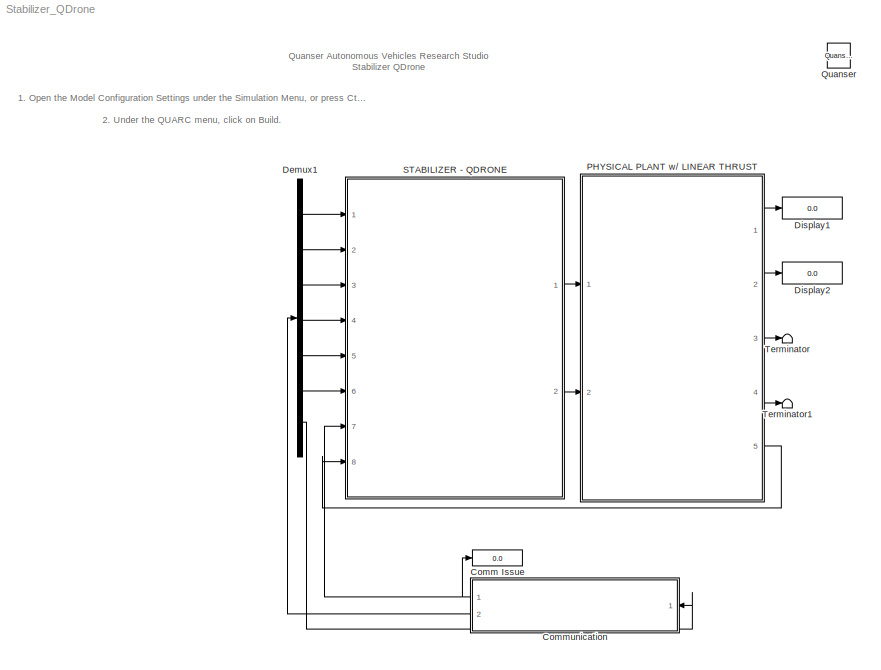
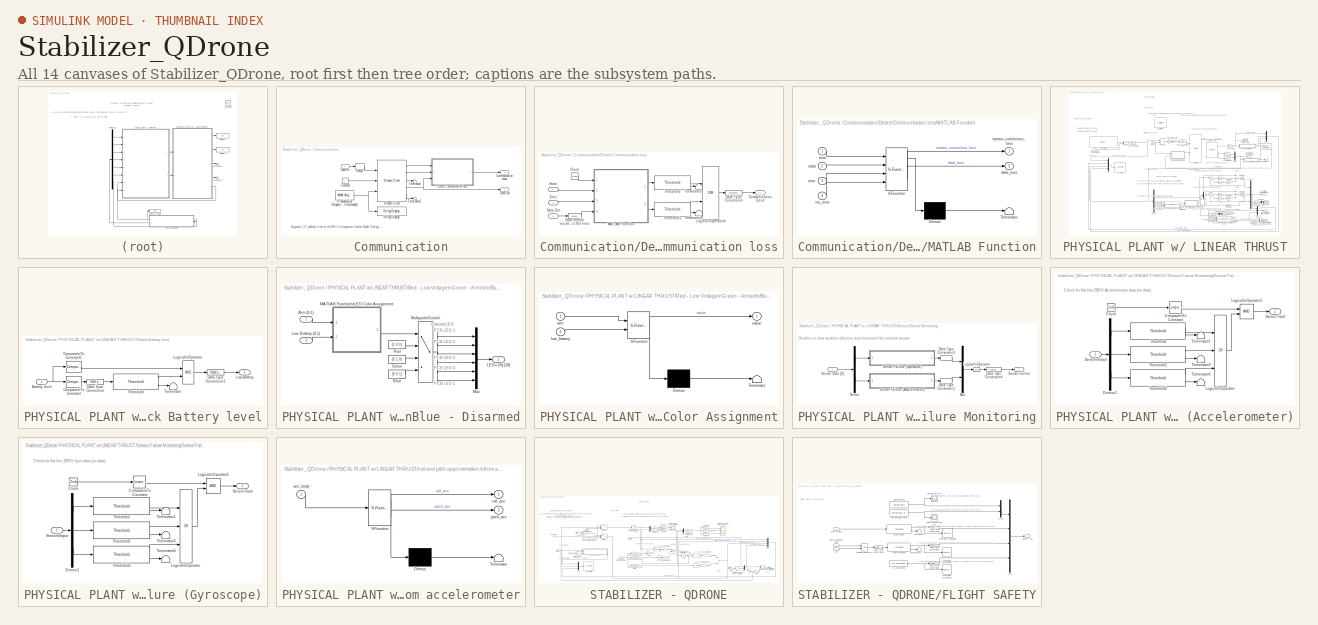
[diagram: thumbnail index - all 14 canvases of the model, root first then tree order]
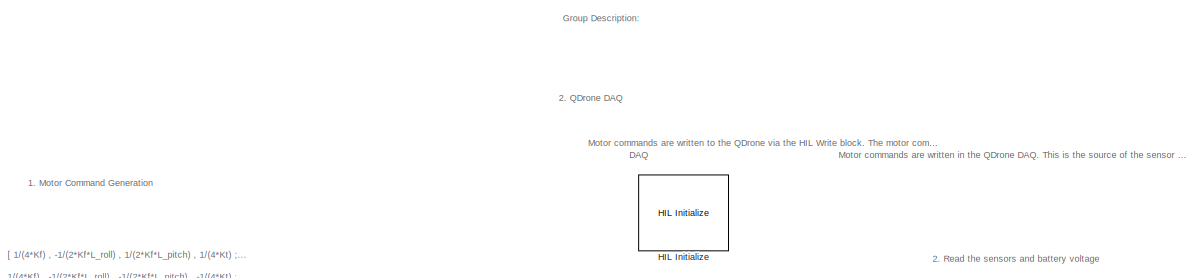
[diagram: PHYSICAL PLANT w/ LINEAR THRUST - part 1/3, full width, top band]
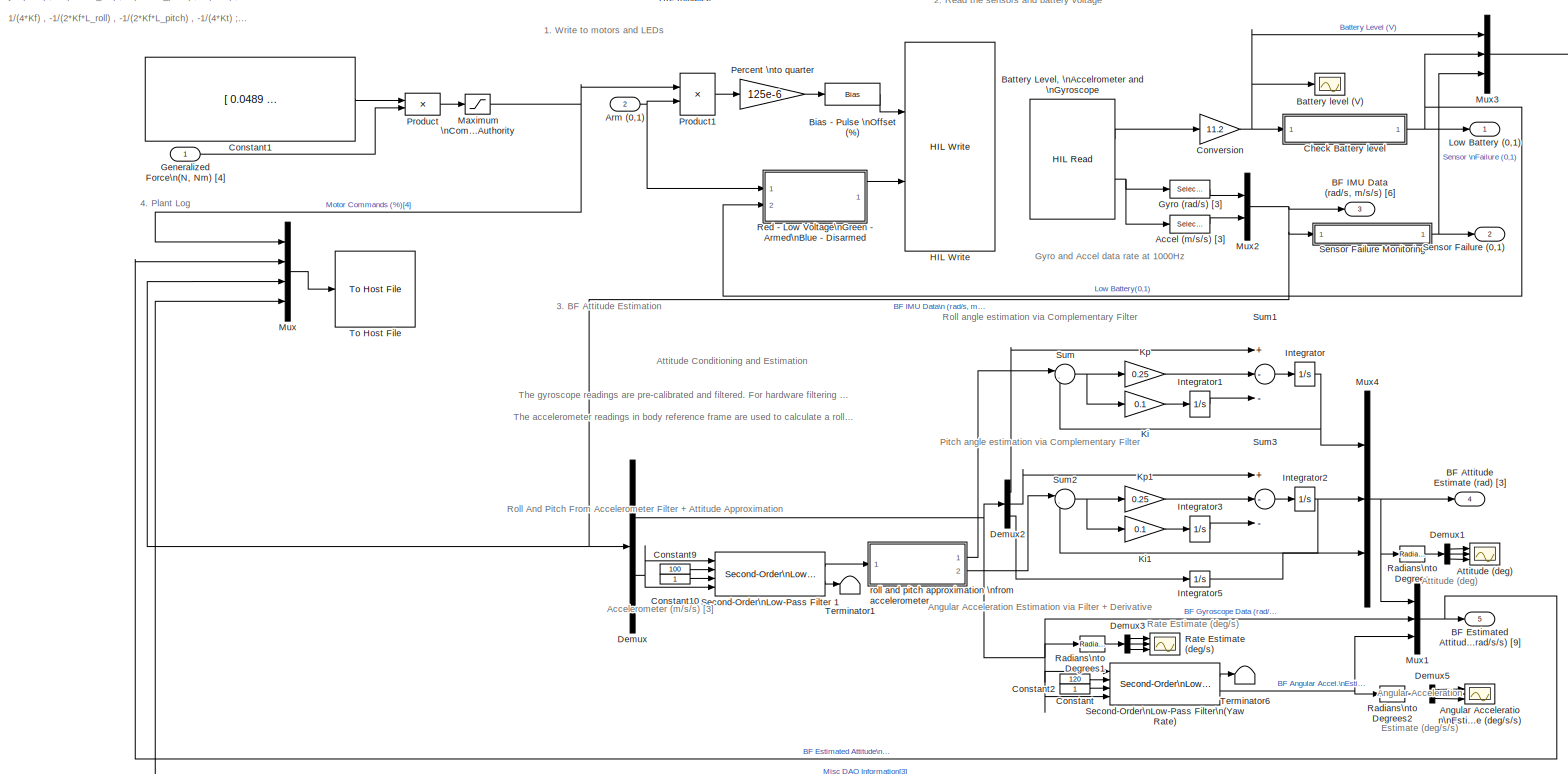
[diagram: PHYSICAL PLANT w/ LINEAR THRUST - part 2/3, full width, middle band]
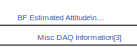
[diagram: PHYSICAL PLANT w/ LINEAR THRUST - part 3/3, bottom center region]
MODEL Stabilizer_QDrone
KIND model
BLOCK [Display] Comm Issue
  Decimation = 1
  Ports = [1]
  SID = 6566
BLOCK [SubSystem] Communication
  Ports = [1, 2]
  RequestExecContextInheritance = off
  SID = 394
BLOCK [Outport] Communication/Communication Issue
  IconDisplay = Port number
  SID = 6541
BLOCK [Constant] Communication/Constant
  SID = 2649
BLOCK [Inport] Communication/Data In
  IconDisplay = Port number
  SID = 6543
BLOCK [Outport] Communication/Data Out
  IconDisplay = Port number
  Port = 2
  SID = 6542
BLOCK [Delay] Communication/Delay
  DelayLength = 1
  InputPortMap = u0
  Ports = [1, 1]
  SID = 404
BLOCK [SubSystem] Communication/Detect Communication loss
  Ports = [3, 1]
  RequestExecContextInheritance = off
  SID = 6556
BLOCK [Clock] Communication/Detect Communication loss/Clock
  SID = 6476
BLOCK [Outport] Communication/Detect Communication loss/Communication Issue
  IconDisplay = Port number
  SID = 6560
BLOCK [Inport] Communication/Detect Communication loss/Data Out
  IconDisplay = Port number
  Port = 3
  SID = 6561
BLOCK [DataTypeConversion] Communication/Detect Communication loss/Data Type Conversion
  RndMeth = Floor
  SID = 5201
  SaturateOnIntegerOverflow = off
BLOCK [Inport] Communication/Detect Communication loss/Error
  IconDisplay = Port number
  Port = 2
  SID = 6558
BLOCK [Selector] Communication/Detect Communication loss/Grab throttle \ncommand to \ndetect flat lines
  IndexOptions = Index vector (dialog)
  Indices = [11]
  InputPortWidth = 11
  OutputSizes = 1
  Ports = [1, 1]
  SID = 5204
BLOCK [Logic] Communication/Detect Communication loss/Logical\nOperator4
  AllPortsSameDT = off
  Operator = OR
  OutDataTypeStr = boolean
  Ports = [2, 1]
  SID = 5191
BLOCK [SubSystem] Communication/Detect Communication loss/MATLAB Function
  ErrorFcn = Stateflow.Translate.translate
  PermitHierarchicalResolution = ExplicitOnly
  Ports = [4, 2]
  RequestExecContextInheritance = off
  SFBlockType = MATLAB Function
  SID = 6473
  TreatAsAtomicUnit = on
BLOCK [Demux] Communication/Detect Communication loss/MATLAB Function/ Demux 
  DisplayOption = bar
  Outputs = 1
  Ports = [1, 1]
  SID = 6473::47
BLOCK [S-Function] Communication/Detect Communication loss/MATLAB Function/ SFunction 
  EnableBusSupport = on
  FunctionName = sf_sfun
  PortCounts = [4 3]
  Ports = [4, 3]
  SFcnIsStateOwnerBlock = off
  SFunctionDeploymentMode = off
  SID = 6473::46
  Tag = Stateflow S-Function Stabilizer_QDrone 3
BLOCK [Terminator] Communication/Detect Communication loss/MATLAB Function/ Terminator 
  SID = 6473::48
BLOCK [Outport] Communication/Detect Communication loss/MATLAB Function/data_loss
  IconDisplay = Port number
  Port = 2
  SID = 6473::26
BLOCK [Inport] Communication/Detect Communication loss/MATLAB Function/error
  IconDisplay = Port number
  Port = 3
  SID = 6473::23
BLOCK [Inport] Communication/Detect Communication loss/MATLAB Function/ms_time
  IconDisplay = Port number
  Port = 4
  SID = 6473::24
BLOCK [Inport] Communication/Detect Communication loss/MATLAB Function/state
  IconDisplay = Port number
  Port = 2
  SID = 6473::22
BLOCK [Outport] Communication/Detect Communication loss/MATLAB Function/stream_connection_loss
  IconDisplay = Port number
  SID = 6473::5
BLOCK [Inport] Communication/Detect Communication loss/MATLAB Function/time
  IconDisplay = Port number
  SID = 6473::1
BLOCK [Inport] Communication/Detect Communication loss/State
  IconDisplay = Port number
  SID = 6557
BLOCK [Terminator] Communication/Detect Communication loss/Terminator2
  SID = 5193
BLOCK [Terminator] Communication/Detect Communication loss/Terminator3
  SID = 5194
BLOCK [Reference] Communication/Detect Communication loss/Threshold  REF=quarc_library/Discontinuities/Threshold
  Ports = [1, 2]
  RTWMemSecDataConstants = Inherit from model
  RTWMemSecDataInternal = Inherit from model
  RTWMemSecDataParameters = Inherit from model
  RTWMemSecFuncExecute = Inherit from model
  RTWMemSecFuncInitTerm = Inherit from model
  SID = 5195
  SourceBlock = quarc_library/Discontinuities/Threshold
  SourceProductName = QUARC Targets
  SourceType = Threshold
  duration = 0.1
  operator = >=
  param_src = Specify via dialog
  threshold = 0.5
BLOCK [Reference] Communication/Detect Communication loss/Threshold1  REF=quarc_library/Discontinuities/Threshold
  Ports = [1, 2]
  RTWMemSecDataConstants = Inherit from model
  RTWMemSecDataInternal = Inherit from model
  RTWMemSecDataParameters = Inherit from model
  RTWMemSecFuncExecute = Inherit from model
  RTWMemSecFuncInitTerm = Inherit from model
  SID = 5196
  SourceBlock = quarc_library/Discontinuities/Threshold
  SourceProductName = QUARC Targets
  SourceType = Threshold
  duration = 0.5
  operator = >=
  param_src = Specify via dialog
  threshold = 0.5
BLOCK [Reference] Communication/IP Address of \nSupervisory Model\n(Mission Operator//Commander)  REF=quarc_library/Sources/Signals/Model Argument
  AttributesFormatString = (-%<argument_name>)
  MultiThreadCoSim = auto
  Ports = [0, 1]
  SID = 5177
  SourceBlock = quarc_library/Sources/Signals/Model Argument
  SourceProductName = QUARC Targets
  SourceType = Model Argument
  argument_name = IP_address
  data_type = char
  data_type_mode = Specify via dialog
  default_value = 0
  has_value = on
  max_length = 80
  variable_size = off
BLOCK [Reference] Communication/Stream Client  REF=quarc_library/Communications/Basic/Stream Client
  MultiThreadCoSim = auto
  Ports = [3, 5]
  SID = 410
  SourceBlock = quarc_library/Communications/Basic/Stream Client
  SourceProductName = The database <userpath><path> is locked, or a table in the database is locked. (database is locked)
  SourceType = Stream Client
  active = off
  apply_uri_to_all_configs = on
  byte_order = little endian (Intel - LSB first)
  data_type = Inherited via back propagation
  default_value = zeros(1,11)
  implementation = Use blocking I/O in a separate thread
  max_dimensions = -1
  optimization = Minimum latency
  receive_buffer_size = 1460
  receive_dimensions = off
  receive_fifo_size = 1
  receive_options = Receive most recent data
  receive_priority = 0
  sample_time = qc_get_step_size
  send_buffer_size = 1460
  send_dimensions = off
  send_fifo_size = 1
  send_options = Send most recent data
  send_priority = 0
  type_expr = BusObject
  uri = tcpip://localhost:18999
  uri_source = External input port
BLOCK [Reference] Communication/String Display  REF=quarc_library/Strings/String Display
  MultiThreadCoSim = auto
  Ports = [1]
  SID = 5178
  SourceBlock = quarc_library/Strings/String Display
  SourceProductName = QUARC Targets
  SourceType = String Display
  alignment = center
  display_mode = Single line
  sample_time = -1
  use_new = off
BLOCK [Terminator] Communication/Terminator
  SID = 411
BLOCK [Terminator] Communication/Terminator1
  SID = 5205
BLOCK [Demux] Demux1
  DisplayOption = bar
  Outputs = [1 1 1 3 3 1 1]
  Ports = [1, 7]
  SID = 405
BLOCK [Display] Display1
  Decimation = 100
  Ports = [1]
  SID = 11708
BLOCK [Display] Display2
  Decimation = 100
  Ports = [1]
  SID = 11709
BLOCK [SubSystem] PHYSICAL PLANT w// LINEAR THRUST
  Ports = [2, 5]
  RequestExecContextInheritance = off
  SID = 11861
BLOCK [Outport] PHYSICAL PLANT w// LINEAR THRUST/ BF Attitude Estimate (rad) [3]
  IconDisplay = Port number
  Port = 4
  SID = 11985
BLOCK [Selector] PHYSICAL PLANT w// LINEAR THRUST/Accel (m//s//s) [3]
  IndexOptions = Index vector (dialog)
  Indices = [4:6]
  InputPortWidth = 6
  OutputSizes = 1
  Ports = [1, 1]
  SID = 11864
BLOCK [Scope] PHYSICAL PLANT w// LINEAR THRUST/Angular Acceleration\nEstimate (deg//s//s)
  Floating = off
  NumInputPorts = 3
  Ports = [3]
  SID = 11865
  ScopeSpecificationString = Simulink.scopes.TimeScopeBlockCfg('CurrentConfiguration', extmgr.ConfigurationSet(extmgr.Configuration('Core','General UI',true),extmgr.Configuration('Core','Source UI',true),extmgr.Configuration('Sources','WiredSimulink',true,'DataLoggingVariableName','ScopeData5','DataLoggingLimitDataPoints',true,'DataLoggingSaveFormat','Array','DataLoggingDecimation','1','DataLoggingDecimateData',true),extmgr.C...<+2837ch>
BLOCK [Inport] PHYSICAL PLANT w// LINEAR THRUST/Arm (0,1)
  IconDisplay = Port number
  Port = 2
  SID = 11863
BLOCK [Scope] PHYSICAL PLANT w// LINEAR THRUST/Attitude (deg)
  Floating = off
  NumInputPorts = 3
  Ports = [3]
  SID = 11866
  ScopeSpecificationString = Simulink.scopes.TimeScopeBlockCfg('CurrentConfiguration', extmgr.ConfigurationSet(extmgr.Configuration('Core','General UI',true),extmgr.Configuration('Core','Source UI',true),extmgr.Configuration('Sources','WiredSimulink',true,'DataLoggingVariableName','ScopeData2','DataLoggingSaveFormat','Array','DataLoggingDecimation','1','DataLoggingDecimateData',true),extmgr.Configuration('Visuals','Time Domai...<+2849ch>
BLOCK [Outport] PHYSICAL PLANT w// LINEAR THRUST/BF Estimated Attitude\n(rad, rad//s, rad//s//s) [9]
  IconDisplay = Port number
  Port = 5
  SID = 11986
BLOCK [Outport] PHYSICAL PLANT w// LINEAR THRUST/BF IMU Data (rad//s, m//s//s) [6]
  IconDisplay = Port number
  Port = 3
  SID = 11984
BLOCK [Reference] PHYSICAL PLANT w// LINEAR THRUST/Battery Level, \nAccelrometer and \nGyroscope  REF=quarc_library/Data Acquisition/Generic/Immediate I//O/HIL Read
  AttributesFormatString = (%<object_name>)
  MultiThreadCoSim = auto
  Ports = [0, 2]
  Priority = 1
  SID = 11867
  SourceBlock = quarc_library/Data Acquisition/Generic/Immediate I//O/HIL Read
  SourceProductName = The database <userpath><path> is locked, or a table in the database is locked. (database is locked)
  SourceType = HIL Read
  UserData = DataTag1
  UserDataPersistent = on
  active = on
  analog_channels = [4]
  data_type_mode = Inherit via back propagation
  digital_channels = []
  digital_data_type = boolean
  encoder_channels = []
  encoder_data_type = double
  object_name = HIL-1
  other_channels = [3000:3002 4000:4002]
  sample_time = qc_get_step_size
  vector_output = on
BLOCK [Scope] PHYSICAL PLANT w// LINEAR THRUST/Battery level  (V)
  Floating = off
  NumInputPorts = 1
  Ports = [1]
  SID = 11868
  ScopeSpecificationString = Simulink.scopes.TimeScopeBlockCfg('CurrentConfiguration', extmgr.ConfigurationSet(extmgr.Configuration('Core','General UI',true),extmgr.Configuration('Core','Source UI',true),extmgr.Configuration('Sources','WiredSimulink',true,'DataLoggingSaveFormat','Array','DataLoggingDecimation','1','DataLoggingDecimateData',true,'DataLoggingVariableName','ScopeData1'),extmgr.Configuration('Visuals','Time Domai...<+1584ch>
BLOCK [Bias] PHYSICAL PLANT w// LINEAR THRUST/Bias - Pulse \nOffset (%)
  Bias = 125e-6
  SID = 11869
  SaturateOnIntegerOverflow = off
BLOCK [SubSystem] PHYSICAL PLANT w// LINEAR THRUST/Check Battery level
  Ports = [1, 1]
  RequestExecContextInheritance = off
  SID = 11870
BLOCK [Inport] PHYSICAL PLANT w// LINEAR THRUST/Check Battery level/Battery level
  IconDisplay = Port number
  SID = 11871
BLOCK [Reference] PHYSICAL PLANT w// LINEAR THRUST/Check Battery level/Compare\nTo Constant  REF=simulink/Logic and Bit\nOperations/Compare\nTo Constant
  OutDataTypeStr = boolean
  Ports = [1, 1]
  RTWMemSecDataConstants = Inherit from model
  RTWMemSecDataInternal = Inherit from model
  RTWMemSecDataParameters = Inherit from model
  RTWMemSecFuncExecute = Inherit from model
  RTWMemSecFuncInitTerm = Inherit from model
  SID = 11872
  SourceBlock = simulink/Logic and Bit\nOperations/Compare\nTo Constant
  SourceProductBaseCode = SL
  SourceType = Compare To Constant
  ZeroCross = on
  const = 10.5
  relop = <=
BLOCK [Reference] PHYSICAL PLANT w// LINEAR THRUST/Check Battery level/Compare\nTo Constant1  REF=simulink/Logic and Bit\nOperations/Compare\nTo Constant
  OutDataTypeStr = boolean
  Ports = [1, 1]
  RTWMemSecDataConstants = Inherit from model
  RTWMemSecDataInternal = Inherit from model
  RTWMemSecDataParameters = Inherit from model
  RTWMemSecFuncExecute = Inherit from model
  RTWMemSecFuncInitTerm = Inherit from model
  SID = 11873
  SourceBlock = simulink/Logic and Bit\nOperations/Compare\nTo Constant
  SourceProductBaseCode = SL
  SourceType = Compare To Constant
  ZeroCross = on
  const = 0.5
  relop = >
BLOCK [DataTypeConversion] PHYSICAL PLANT w// LINEAR THRUST/Check Battery level/Data Type Conversion
  RndMeth = Floor
  SID = 11874
  SaturateOnIntegerOverflow = off
BLOCK [DataTypeConversion] PHYSICAL PLANT w// LINEAR THRUST/Check Battery level/Data Type Conversion1
  RndMeth = Floor
  SID = 11875
  SaturateOnIntegerOverflow = off
BLOCK [Logic] PHYSICAL PLANT w// LINEAR THRUST/Check Battery level/Logical\nOperator
  AllPortsSameDT = off
  OutDataTypeStr = boolean
  Ports = [2, 1]
  SID = 11876
BLOCK [Outport] PHYSICAL PLANT w// LINEAR THRUST/Check Battery level/Low Battery
  IconDisplay = Port number
  SID = 11879
BLOCK [Terminator] PHYSICAL PLANT w// LINEAR THRUST/Check Battery level/Terminator
  SID = 11877
BLOCK [Reference] PHYSICAL PLANT w// LINEAR THRUST/Check Battery level/Threshold  REF=quarc_library/Discontinuities/Threshold
  Ports = [1, 2]
  RTWMemSecDataConstants = Inherit from model
  RTWMemSecDataInternal = Inherit from model
  RTWMemSecDataParameters = Inherit from model
  RTWMemSecFuncExecute = Inherit from model
  RTWMemSecFuncInitTerm = Inherit from model
  SID = 11878
  SourceBlock = quarc_library/Discontinuities/Threshold
  SourceProductName = The database <userpath><path> is locked, or a table in the database is locked. (database is locked)
  SourceType = Threshold
  duration = 0.1
  operator = >=
  param_src = Specify via dialog
  threshold = 0.5
BLOCK [Constant] PHYSICAL PLANT w// LINEAR THRUST/Constant
  SID = 11880
  Value = 120
BLOCK [Constant] PHYSICAL PLANT w// LINEAR THRUST/Constant1
  SID = 11881
  Value = [ 0.0489   -0.4581    0.5566    5.1335;\n  0.0489   -0.4581   -0.5566   -5.1335;\n  0.0489    0.4581    0.5566   -5.1335;\n  0.0489    0.4581   -0.5566    5.1335]
BLOCK [Constant] PHYSICAL PLANT w// LINEAR THRUST/Constant10
  SID = 11882
BLOCK [Constant] PHYSICAL PLANT w// LINEAR THRUST/Constant2
  SID = 11883
BLOCK [Constant] PHYSICAL PLANT w// LINEAR THRUST/Constant9
  SID = 11884
  Value = 100
BLOCK [Gain] PHYSICAL PLANT w// LINEAR THRUST/Conversion
  Gain = 11.2
  OutDataTypeStr = Inherit: Inherit via internal rule
  ParamDataTypeStr = Inherit: Inherit via internal rule
  SID = 11885
  SaturateOnIntegerOverflow = off
BLOCK [Demux] PHYSICAL PLANT w// LINEAR THRUST/Demux
  DisplayOption = bar
  Outputs = [3 3]
  Ports = [1, 2]
  SID = 11886
BLOCK [Demux] PHYSICAL PLANT w// LINEAR THRUST/Demux1
  DisplayOption = bar
  Outputs = 3
  Ports = [1, 3]
  SID = 11887
BLOCK [Demux] PHYSICAL PLANT w// LINEAR THRUST/Demux2
  DisplayOption = bar
  Outputs = 3
  Ports = [1, 3]
  SID = 11888
BLOCK [Demux] PHYSICAL PLANT w// LINEAR THRUST/Demux3
  DisplayOption = bar
  Outputs = 3
  Ports = [1, 3]
  SID = 11889
BLOCK [Demux] PHYSICAL PLANT w// LINEAR THRUST/Demux5
  DisplayOption = bar
  Outputs = 3
  Ports = [1, 3]
  SID = 11890
BLOCK [Inport] PHYSICAL PLANT w// LINEAR THRUST/Generalized Force\n(N, Nm) [4]
  IconDisplay = Port number
  SID = 11862
BLOCK [Selector] PHYSICAL PLANT w// LINEAR THRUST/Gyro (rad//s) [3]
  IndexOptions = Index vector (dialog)
  Indices = [1:3]
  InputPortWidth = 6
  OutputSizes = 1
  Ports = [1, 1]
  SID = 11891
BLOCK [Reference] PHYSICAL PLANT w// LINEAR THRUST/HIL Initialize  REF=quarc_library/Data Acquisition/Generic/Configuration/HIL Initialize
  AttributesFormatString = %<object_name> (%<board_type>-%<board_number>)
  MultiThreadCoSim = auto
  Ports = []
  SID = 11892
  SourceBlock = quarc_library/Data Acquisition/Generic/Configuration/HIL Initialize
  SourceProductName = The database <userpath><path> is locked, or a table in the database is locked. (database is locked)
  SourceType = HIL Initialize
  UserData = DataTag2
  UserDataPersistent = on
  active = on
  analog_input_channels = [0:4]
  analog_input_configurations = []
  analog_input_maximums = [3.3]
  analog_input_minimums = [0]
  analog_output_channels = []
  analog_output_maximums = []
  analog_output_minimums = []
  board_number = 0
  board_options = gyro_fs=2000;gyro_rate=1000;gyro_os=4;accel_fs=16;accel_rate=400;accel_os=4;baro_os=4096
  board_type = qdrone
  clock_modes = []
  digital_input_channels = []
  digital_output_channels = [5:7 9:23]
  digital_output_configuration = []
  encoder_channels = [0:2]
  encoder_filter_frequency = 50e6/1
  exclusive = off
  final_analog_outputs = []
  final_digital_outputs = [0]
  final_other_outputs = []
  final_pwm_outputs = [0]
  hardware_clocks = []
  initial_analog_outputs = []
  initial_clock_frequencies = []
  initial_digital_outputs = [0]
  initial_encoder_counts = [0]
  initial_other_outputs = []
  initial_pwm_outputs = [0]
  object_name = HIL-1
  other_output_channels = []
  pwm_alignment = [0]
  pwm_channels = [0:3]
  pwm_configuration = [0]
  pwm_frequency = 2000
  pwm_leading_deadband = []
  pwm_modes = [4]
  pwm_polarity = [1]
  pwm_trailing_deadband = []
  quadrature = [4]
  set_analog_input_params_at_start = off
  set_analog_input_params_at_switch_in = off
  set_analog_output_params_at_start = off
  set_analog_output_params_at_switch_in = off
  set_analog_outputs_at_start = off
  set_analog_outputs_at_switch_in = off
  set_analog_outputs_at_switch_out = off
  set_analog_outputs_at_terminate = off
  set_analog_outputs_on_watchdog = off
  set_clock_frequencies_at_start = off
  set_clock_frequencies_at_switch_in = off
  set_clock_params_at_start = off
  set_clock_params_at_switch_in = off
  set_digital_output_params_at_start = off
  set_digital_output_params_at_switch_in = off
  set_digital_outputs_at_start = on
  set_digital_outputs_at_switch_in = off
  set_digital_outputs_at_switch_out = off
  set_digital_outputs_at_terminate = on
  set_digital_outputs_on_watchdog = off
  set_encoder_counts_at_start = on
  set_encoder_counts_at_switch_in = off
  set_encoder_params_at_start = on
  set_encoder_params_at_switch_in = off
  set_other_outputs_at_start = off
  set_other_outputs_at_switch_in = off
  set_other_outputs_at_switch_out = off
  set_other_outputs_at_terminate = off
  set_other_outputs_on_watchdog = off
  set_pwm_outputs_at_start = on
  set_pwm_outputs_at_switch_in = off
  set_pwm_outputs_at_switch_out = off
  set_pwm_outputs_at_terminate = on
  set_pwm_outputs_on_watchdog = off
  set_pwm_params_at_start = on
  set_pwm_params_at_switch_in = off
  watchdog_analog_outputs = []
  watchdog_digital_outputs = []
  watchdog_other_outputs = []
  watchdog_pwm_outputs = [0]
BLOCK [Reference] PHYSICAL PLANT w// LINEAR THRUST/HIL Write  REF=quarc_library/Data Acquisition/Generic/Immediate I//O/HIL Write
  AttributesFormatString = (%<object_name>)
  MultiThreadCoSim = auto
  Ports = [2]
  SID = 11893
  SourceBlock = quarc_library/Data Acquisition/Generic/Immediate I//O/HIL Write
  SourceProductName = The database <userpath><path> is locked, or a table in the database is locked. (database is locked)
  SourceType = HIL Write
  UserData = DataTag3
  UserDataPersistent = on
  active = off
  analog_channels = []
  digital_channels = [5:7 9:23]
  object_name = HIL-1
  other_channels = []
  pwm_channels = [0:3]
  sample_time = -1
  vector_input = on
BLOCK [Integrator] PHYSICAL PLANT w// LINEAR THRUST/Integrator
  Ports = [1, 1]
  SID = 11894
BLOCK [Integrator] PHYSICAL PLANT w// LINEAR THRUST/Integrator1
  Ports = [1, 1]
  SID = 11895
BLOCK [Integrator] PHYSICAL PLANT w// LINEAR THRUST/Integrator2
  Ports = [1, 1]
  SID = 11896
BLOCK [Integrator] PHYSICAL PLANT w// LINEAR THRUST/Integrator3
  Ports = [1, 1]
  SID = 11897
BLOCK [Integrator] PHYSICAL PLANT w// LINEAR THRUST/Integrator5
  Ports = [1, 1]
  SID = 11898
BLOCK [Gain] PHYSICAL PLANT w// LINEAR THRUST/Ki
  Gain = 0.1
  OutDataTypeStr = Inherit: Inherit via internal rule
  ParamDataTypeStr = Inherit: Inherit via internal rule
  SID = 11899
  SaturateOnIntegerOverflow = off
BLOCK [Gain] PHYSICAL PLANT w// LINEAR THRUST/Ki1
  Gain = 0.1
  OutDataTypeStr = Inherit: Inherit via internal rule
  ParamDataTypeStr = Inherit: Inherit via internal rule
  SID = 11900
  SaturateOnIntegerOverflow = off
BLOCK [Gain] PHYSICAL PLANT w// LINEAR THRUST/Kp
  Gain = 0.25
  OutDataTypeStr = Inherit: Inherit via internal rule
  ParamDataTypeStr = Inherit: Inherit via internal rule
  SID = 11901
  SaturateOnIntegerOverflow = off
BLOCK [Gain] PHYSICAL PLANT w// LINEAR THRUST/Kp1
  Gain = 0.25
  OutDataTypeStr = Inherit: Inherit via internal rule
  ParamDataTypeStr = Inherit: Inherit via internal rule
  SID = 11902
  SaturateOnIntegerOverflow = off
BLOCK [Outport] PHYSICAL PLANT w// LINEAR THRUST/Low Battery (0,1)
  IconDisplay = Port number
  SID = 11982
BLOCK [Saturate] PHYSICAL PLANT w// LINEAR THRUST/Maximum \nCommand\nAuthority 
  InputPortMap = u0
  LowerLimit = [0 0 0 0]
  Ports = [1, 1]
  SID = 11903
  UpperLimit = [1 1 1 1]
BLOCK [Mux] PHYSICAL PLANT w// LINEAR THRUST/Mux
  DisplayOption = bar
  Ports = [4, 1]
  SID = 11904
BLOCK [Mux] PHYSICAL PLANT w// LINEAR THRUST/Mux1
  DisplayOption = bar
  Inputs = 3
  Ports = [3, 1]
  SID = 11905
BLOCK [Mux] PHYSICAL PLANT w// LINEAR THRUST/Mux2
  DisplayOption = bar
  Inputs = 2
  Ports = [2, 1]
  SID = 11906
BLOCK [Mux] PHYSICAL PLANT w// LINEAR THRUST/Mux3
  DisplayOption = bar
  Inputs = 3
  Ports = [3, 1]
  SID = 11907
BLOCK [Mux] PHYSICAL PLANT w// LINEAR THRUST/Mux4
  DisplayOption = bar
  Inputs = 3
  Ports = [3, 1]
  SID = 11908
BLOCK [Gain] PHYSICAL PLANT w// LINEAR THRUST/Percent \nto quarter
  Gain = 125e-6
  OutDataTypeStr = Inherit: Inherit via internal rule
  ParamDataTypeStr = Inherit: Inherit via internal rule
  SID = 11909
  SaturateOnIntegerOverflow = off
BLOCK [Product] PHYSICAL PLANT w// LINEAR THRUST/Product
  InputSameDT = off
  Multiplication = Matrix(*)
  OutDataTypeStr = Inherit: Inherit via internal rule
  Ports = [2, 1]
  RndMeth = Floor
  SID = 11910
  SaturateOnIntegerOverflow = off
BLOCK [Product] PHYSICAL PLANT w// LINEAR THRUST/Product1
  InputSameDT = off
  OutDataTypeStr = Inherit: Inherit via internal rule
  Ports = [2, 1]
  RndMeth = Floor
  SID = 11911
  SaturateOnIntegerOverflow = off
BLOCK [Reference] PHYSICAL PLANT w// LINEAR THRUST/Radians\nto Degrees  REF=simulink_extras/Transformations/Radians\nto Degrees
  Ports = [1, 1]
  RTWMemSecDataConstants = Inherit from model
  RTWMemSecDataInternal = Inherit from model
  RTWMemSecDataParameters = Inherit from model
  RTWMemSecFuncExecute = Inherit from model
  RTWMemSecFuncInitTerm = Inherit from model
  SID = 11912
  SourceBlock = simulink_extras/Transformations/Radians\nto Degrees
  SourceProductBaseCode = SL
  SourceType = RadiansToDegrees
BLOCK [Reference] PHYSICAL PLANT w// LINEAR THRUST/Radians\nto Degrees1  REF=simulink_extras/Transformations/Radians\nto Degrees
  Ports = [1, 1]
  RTWMemSecDataConstants = Inherit from model
  RTWMemSecDataInternal = Inherit from model
  RTWMemSecDataParameters = Inherit from model
  RTWMemSecFuncExecute = Inherit from model
  RTWMemSecFuncInitTerm = Inherit from model
  SID = 11913
  SourceBlock = simulink_extras/Transformations/Radians\nto Degrees
  SourceProductBaseCode = SL
  SourceType = RadiansToDegrees
BLOCK [Reference] PHYSICAL PLANT w// LINEAR THRUST/Radians\nto Degrees2  REF=simulink_extras/Transformations/Radians\nto Degrees
  Ports = [1, 1]
  RTWMemSecDataConstants = Inherit from model
  RTWMemSecDataInternal = Inherit from model
  RTWMemSecDataParameters = Inherit from model
  RTWMemSecFuncExecute = Inherit from model
  RTWMemSecFuncInitTerm = Inherit from model
  SID = 11914
  SourceBlock = simulink_extras/Transformations/Radians\nto Degrees
  SourceProductBaseCode = SL
  SourceType = RadiansToDegrees
BLOCK [Scope] PHYSICAL PLANT w// LINEAR THRUST/Rate Estimate (deg//s)
  Floating = off
  NumInputPorts = 3
  Ports = [3]
  SID = 11915
  ScopeSpecificationString = Simulink.scopes.TimeScopeBlockCfg('CurrentConfiguration', extmgr.ConfigurationSet(extmgr.Configuration('Core','General UI',true),extmgr.Configuration('Core','Source UI',true),extmgr.Configuration('Sources','WiredSimulink',true,'DataLoggingVariableName','ScopeData1','DataLoggingLimitDataPoints',true,'DataLoggingSaveFormat','Array','DataLoggingDecimation','1','DataLoggingDecimateData',true),extmgr.C...<+2808ch>
BLOCK [SubSystem] PHYSICAL PLANT w// LINEAR THRUST/Red - Low Voltage\nGreen - Armed\nBlue - Disarmed
  Ports = [2, 1]
  RequestExecContextInheritance = off
  SID = 11916
BLOCK [Inport] PHYSICAL PLANT w// LINEAR THRUST/Red - Low Voltage\nGreen - Armed\nBlue - Disarmed/Arm (0,1)
  IconDisplay = Port number
  SID = 11917
BLOCK [Constant] PHYSICAL PLANT w// LINEAR THRUST/Red - Low Voltage\nGreen - Armed\nBlue - Disarmed/Blue
  SID = 11919
  Value = [0 0 1]
BLOCK [Constant] PHYSICAL PLANT w// LINEAR THRUST/Red - Low Voltage\nGreen - Armed\nBlue - Disarmed/Green
  SID = 11920
  Value = [0 1 0]
BLOCK [Outport] PHYSICAL PLANT w// LINEAR THRUST/Red - Low Voltage\nGreen - Armed\nBlue - Disarmed/LEDs (%) [18]
  IconDisplay = Port number
  SID = 11925
BLOCK [Inport] PHYSICAL PLANT w// LINEAR THRUST/Red - Low Voltage\nGreen - Armed\nBlue - Disarmed/Low Battery (0,1)
  IconDisplay = Port number
  Port = 2
  SID = 11918
BLOCK [SubSystem] PHYSICAL PLANT w// LINEAR THRUST/Red - Low Voltage\nGreen - Armed\nBlue - Disarmed/MATLAB Function\nLED Color Assignment
  ErrorFcn = Stateflow.Translate.translate
  PermitHierarchicalResolution = ExplicitOnly
  Ports = [2, 1]
  RequestExecContextInheritance = off
  SFBlockType = MATLAB Function
  SID = 11921
  TreatAsAtomicUnit = on
BLOCK [Demux] PHYSICAL PLANT w// LINEAR THRUST/Red - Low Voltage\nGreen - Armed\nBlue - Disarmed/MATLAB Function\nLED Color Assignment/ Demux 
  DisplayOption = bar
  Outputs = 1
  Ports = [1, 1]
  SID = 11921::106
BLOCK [S-Function] PHYSICAL PLANT w// LINEAR THRUST/Red - Low Voltage\nGreen - Armed\nBlue - Disarmed/MATLAB Function\nLED Color Assignment/ SFunction 
  EnableBusSupport = on
  FunctionName = sf_sfun
  PortCounts = [2 2]
  Ports = [2, 2]
  SFcnIsStateOwnerBlock = off
  SFunctionDeploymentMode = off
  SID = 11921::105
  Tag = Stateflow S-Function Stabilizer_QDrone 12
BLOCK [Terminator] PHYSICAL PLANT w// LINEAR THRUST/Red - Low Voltage\nGreen - Armed\nBlue - Disarmed/MATLAB Function\nLED Color Assignment/ Terminator 
  SID = 11921::107
BLOCK [Inport] PHYSICAL PLANT w// LINEAR THRUST/Red - Low Voltage\nGreen - Armed\nBlue - Disarmed/MATLAB Function\nLED Color Assignment/arm
  IconDisplay = Port number
  SID = 11921::1
BLOCK [Inport] PHYSICAL PLANT w// LINEAR THRUST/Red - Low Voltage\nGreen - Armed\nBlue - Disarmed/MATLAB Function\nLED Color Assignment/low_battery
  IconDisplay = Port number
  Port = 2
  SID = 11921::19
BLOCK [Outport] PHYSICAL PLANT w// LINEAR THRUST/Red - Low Voltage\nGreen - Armed\nBlue - Disarmed/MATLAB Function\nLED Color Assignment/value
  IconDisplay = Port number
  SID = 11921::5
BLOCK [MultiPortSwitch] PHYSICAL PLANT w// LINEAR THRUST/Red - Low Voltage\nGreen - Armed\nBlue - Disarmed/Multiport\nSwitch
  InputSameDT = off
  Ports = [4, 1]
  SID = 11922
  SaturateOnIntegerOverflow = off
BLOCK [Mux] PHYSICAL PLANT w// LINEAR THRUST/Red - Low Voltage\nGreen - Armed\nBlue - Disarmed/Mux
  DisplayOption = bar
  Inputs = [3 3 3 3 3 3]
  Ports = [6, 1]
  SID = 11923
BLOCK [Constant] PHYSICAL PLANT w// LINEAR THRUST/Red - Low Voltage\nGreen - Armed\nBlue - Disarmed/Red
  SID = 11924
  Value = [1 0 0]
BLOCK [Reference] PHYSICAL PLANT w// LINEAR THRUST/Second-Order\nLow-Pass Filter 1  REF=quarc_library/Continuous/Second-Order\nLow-Pass Filter
  Ports = [4, 2]
  RTWMemSecDataConstants = Inherit from model
  RTWMemSecDataInternal = Inherit from model
  RTWMemSecDataParameters = Inherit from model
  RTWMemSecFuncExecute = Inherit from model
  RTWMemSecFuncInitTerm = Inherit from model
  SID = 11933
  SourceBlock = quarc_library/Continuous/Second-Order\nLow-Pass Filter
  SourceProductName = The database <userpath><path> is locked, or a table in the database is locked. (database is locked)
  SourceType = Second-Order Low-Pass Filter
  input_init = 0
  input_width = 50
  input_zeta = 1
  params_source = External (input ports)
BLOCK [Reference] PHYSICAL PLANT w// LINEAR THRUST/Second-Order\nLow-Pass Filter\n(Yaw Rate)  REF=quarc_library/Continuous/Second-Order\nLow-Pass Filter
  Ports = [4, 2]
  RTWMemSecDataConstants = Inherit from model
  RTWMemSecDataInternal = Inherit from model
  RTWMemSecDataParameters = Inherit from model
  RTWMemSecFuncExecute = Inherit from model
  RTWMemSecFuncInitTerm = Inherit from model
  SID = 11932
  SourceBlock = quarc_library/Continuous/Second-Order\nLow-Pass Filter
  SourceProductName = The database <userpath><path> is locked, or a table in the database is locked. (database is locked)
  SourceType = Second-Order Low-Pass Filter
  input_init = 0
  input_width = 200
  input_zeta = 1
  params_source = External (input ports)
BLOCK [Outport] PHYSICAL PLANT w// LINEAR THRUST/Sensor Failure (0,1)
  IconDisplay = Port number
  Port = 2
  SID = 11983
BLOCK [SubSystem] PHYSICAL PLANT w// LINEAR THRUST/Sensor Failure Monitoring
  Ports = [1, 1]
  RequestExecContextInheritance = off
  SID = 11934
BLOCK [DataTypeConversion] PHYSICAL PLANT w// LINEAR THRUST/Sensor Failure Monitoring/Data Type Conversion1
  RndMeth = Floor
  SID = 11936
  SaturateOnIntegerOverflow = off
BLOCK [DataTypeConversion] PHYSICAL PLANT w// LINEAR THRUST/Sensor Failure Monitoring/Data Type Conversion2
  RndMeth = Floor
  SID = 11937
  SaturateOnIntegerOverflow = off
BLOCK [DataTypeConversion] PHYSICAL PLANT w// LINEAR THRUST/Sensor Failure Monitoring/Data Type Conversion4
  RndMeth = Floor
  SID = 11938
  SaturateOnIntegerOverflow = off
BLOCK [Demux] PHYSICAL PLANT w// LINEAR THRUST/Sensor Failure Monitoring/Demux
  DisplayOption = bar
  Outputs = [3 3]
  Ports = [1, 2]
  SID = 11939
BLOCK [Logic] PHYSICAL PLANT w// LINEAR THRUST/Sensor Failure Monitoring/Logical\nOperator
  AllPortsSameDT = off
  Inputs = 1
  Operator = OR
  OutDataTypeStr = boolean
  Ports = [1, 1]
  SID = 11940
BLOCK [Mux] PHYSICAL PLANT w// LINEAR THRUST/Sensor Failure Monitoring/Mux
  DisplayOption = bar
  Inputs = 2
  Ports = [2, 1]
  SID = 11941
BLOCK [Inport] PHYSICAL PLANT w// LINEAR THRUST/Sensor Failure Monitoring/Sensor Data [6]
  IconDisplay = Port number
  SID = 11935
BLOCK [Outport] PHYSICAL PLANT w// LINEAR THRUST/Sensor Failure Monitoring/Sensor Failure
  IconDisplay = Port number
  SID = 11972
BLOCK [SubSystem] PHYSICAL PLANT w// LINEAR THRUST/Sensor Failure Monitoring/Sensor Failure (Accelerometer)
  Ports = [1, 1]
  RequestExecContextInheritance = off
  SID = 11942
BLOCK [Clock] PHYSICAL PLANT w// LINEAR THRUST/Sensor Failure Monitoring/Sensor Failure (Accelerometer)/Clock
  SID = 11944
BLOCK [Reference] PHYSICAL PLANT w// LINEAR THRUST/Sensor Failure Monitoring/Sensor Failure (Accelerometer)/Compare\nTo Constant  REF=simulink/Logic and Bit\nOperations/Compare\nTo Constant
  OutDataTypeStr = boolean
  Ports = [1, 1]
  RTWMemSecDataConstants = Inherit from model
  RTWMemSecDataInternal = Inherit from model
  RTWMemSecDataParameters = Inherit from model
  RTWMemSecFuncExecute = Inherit from model
  RTWMemSecFuncInitTerm = Inherit from model
  SID = 11945
  SourceBlock = simulink/Logic and Bit\nOperations/Compare\nTo Constant
  SourceProductBaseCode = SL
  SourceType = Compare To Constant
  ZeroCross = on
  const = 1
  relop = >=
BLOCK [Demux] PHYSICAL PLANT w// LINEAR THRUST/Sensor Failure Monitoring/Sensor Failure (Accelerometer)/Demux1
  DisplayOption = bar
  Outputs = 3
  Ports = [1, 3]
  SID = 11946
BLOCK [Logic] PHYSICAL PLANT w// LINEAR THRUST/Sensor Failure Monitoring/Sensor Failure (Accelerometer)/Logical\nOperator
  AllPortsSameDT = off
  Inputs = 3
  Operator = OR
  OutDataTypeStr = boolean
  Ports = [3, 1]
  SID = 11947
BLOCK [Logic] PHYSICAL PLANT w// LINEAR THRUST/Sensor Failure Monitoring/Sensor Failure (Accelerometer)/Logical\nOperator1
  AllPortsSameDT = off
  OutDataTypeStr = boolean
  Ports = [2, 1]
  SID = 11948
BLOCK [Outport] PHYSICAL PLANT w// LINEAR THRUST/Sensor Failure Monitoring/Sensor Failure (Accelerometer)/Sensor Fault
  IconDisplay = Port number
  SID = 11955
BLOCK [Inport] PHYSICAL PLANT w// LINEAR THRUST/Sensor Failure Monitoring/Sensor Failure (Accelerometer)/Sensor\nInput
  IconDisplay = Port number
  SID = 11943
BLOCK [Terminator] PHYSICAL PLANT w// LINEAR THRUST/Sensor Failure Monitoring/Sensor Failure (Accelerometer)/Terminator1
  SID = 11949
BLOCK [Terminator] PHYSICAL PLANT w// LINEAR THRUST/Sensor Failure Monitoring/Sensor Failure (Accelerometer)/Terminator3
  SID = 11950
BLOCK [Terminator] PHYSICAL PLANT w// LINEAR THRUST/Sensor Failure Monitoring/Sensor Failure (Accelerometer)/Terminator4
  SID = 11951
BLOCK [Reference] PHYSICAL PLANT w// LINEAR THRUST/Sensor Failure Monitoring/Sensor Failure (Accelerometer)/Threshold  REF=quarc_library/Discontinuities/Threshold
  Ports = [1, 2]
  RTWMemSecDataConstants = Inherit from model
  RTWMemSecDataInternal = Inherit from model
  RTWMemSecDataParameters = Inherit from model
  RTWMemSecFuncExecute = Inherit from model
  RTWMemSecFuncInitTerm = Inherit from model
  SID = 11952
  SourceBlock = quarc_library/Discontinuities/Threshold
  SourceProductName = The database <userpath><path> is locked, or a table in the database is locked. (database is locked)
  SourceType = Threshold
  duration = 1
  operator = ==
  param_src = Specify via dialog
  threshold = 0
BLOCK [Reference] PHYSICAL PLANT w// LINEAR THRUST/Sensor Failure Monitoring/Sensor Failure (Accelerometer)/Threshold1  REF=quarc_library/Discontinuities/Threshold
  Ports = [1, 2]
  RTWMemSecDataConstants = Inherit from model
  RTWMemSecDataInternal = Inherit from model
  RTWMemSecDataParameters = Inherit from model
  RTWMemSecFuncExecute = Inherit from model
  RTWMemSecFuncInitTerm = Inherit from model
  SID = 11953
  SourceBlock = quarc_library/Discontinuities/Threshold
  SourceProductName = The database <userpath><path> is locked, or a table in the database is locked. (database is locked)
  SourceType = Threshold
  duration = 1
  operator = ==
  param_src = Specify via dialog
  threshold = 0
BLOCK [Reference] PHYSICAL PLANT w// LINEAR THRUST/Sensor Failure Monitoring/Sensor Failure (Accelerometer)/Threshold2  REF=quarc_library/Discontinuities/Threshold
  Ports = [1, 2]
  RTWMemSecDataConstants = Inherit from model
  RTWMemSecDataInternal = Inherit from model
  RTWMemSecDataParameters = Inherit from model
  RTWMemSecFuncExecute = Inherit from model
  RTWMemSecFuncInitTerm = Inherit from model
  SID = 11954
  SourceBlock = quarc_library/Discontinuities/Threshold
  SourceProductName = The database <userpath><path> is locked, or a table in the database is locked. (database is locked)
  SourceType = Threshold
  duration = 1
  operator = ==
  param_src = Specify via dialog
  threshold = 0
BLOCK [SubSystem] PHYSICAL PLANT w// LINEAR THRUST/Sensor Failure Monitoring/Sensor Failure (Gyroscope)
  Ports = [1, 1]
  RequestExecContextInheritance = off
  SID = 11957
BLOCK [Clock] PHYSICAL PLANT w// LINEAR THRUST/Sensor Failure Monitoring/Sensor Failure (Gyroscope)/Clock
  SID = 11959
BLOCK [Reference] PHYSICAL PLANT w// LINEAR THRUST/Sensor Failure Monitoring/Sensor Failure (Gyroscope)/Compare\nTo Constant  REF=simulink/Logic and Bit\nOperations/Compare\nTo Constant
  OutDataTypeStr = boolean
  Ports = [1, 1]
  RTWMemSecDataConstants = Inherit from model
  RTWMemSecDataInternal = Inherit from model
  RTWMemSecDataParameters = Inherit from model
  RTWMemSecFuncExecute = Inherit from model
  RTWMemSecFuncInitTerm = Inherit from model
  SID = 11960
  SourceBlock = simulink/Logic and Bit\nOperations/Compare\nTo Constant
  SourceProductBaseCode = SL
  SourceType = Compare To Constant
  ZeroCross = on
  const = 1
  relop = >=
BLOCK [Demux] PHYSICAL PLANT w// LINEAR THRUST/Sensor Failure Monitoring/Sensor Failure (Gyroscope)/Demux1
  DisplayOption = bar
  Outputs = 3
  Ports = [1, 3]
  SID = 11961
BLOCK [Logic] PHYSICAL PLANT w// LINEAR THRUST/Sensor Failure Monitoring/Sensor Failure (Gyroscope)/Logical\nOperator
  AllPortsSameDT = off
  Inputs = 3
  Operator = OR
  OutDataTypeStr = boolean
  Ports = [3, 1]
  SID = 11962
BLOCK [Logic] PHYSICAL PLANT w// LINEAR THRUST/Sensor Failure Monitoring/Sensor Failure (Gyroscope)/Logical\nOperator1
  AllPortsSameDT = off
  OutDataTypeStr = boolean
  Ports = [2, 1]
  SID = 11963
BLOCK [Outport] PHYSICAL PLANT w// LINEAR THRUST/Sensor Failure Monitoring/Sensor Failure (Gyroscope)/Sensor Fault
  IconDisplay = Port number
  SID = 11970
BLOCK [Inport] PHYSICAL PLANT w// LINEAR THRUST/Sensor Failure Monitoring/Sensor Failure (Gyroscope)/Sensor\nInput
  IconDisplay = Port number
  SID = 11958
BLOCK [Terminator] PHYSICAL PLANT w// LINEAR THRUST/Sensor Failure Monitoring/Sensor Failure (Gyroscope)/Terminator1
  SID = 11964
BLOCK [Terminator] PHYSICAL PLANT w// LINEAR THRUST/Sensor Failure Monitoring/Sensor Failure (Gyroscope)/Terminator3
  SID = 11965
BLOCK [Terminator] PHYSICAL PLANT w// LINEAR THRUST/Sensor Failure Monitoring/Sensor Failure (Gyroscope)/Terminator4
  SID = 11966
BLOCK [Reference] PHYSICAL PLANT w// LINEAR THRUST/Sensor Failure Monitoring/Sensor Failure (Gyroscope)/Threshold  REF=quarc_library/Discontinuities/Threshold
  Ports = [1, 2]
  RTWMemSecDataConstants = Inherit from model
  RTWMemSecDataInternal = Inherit from model
  RTWMemSecDataParameters = Inherit from model
  RTWMemSecFuncExecute = Inherit from model
  RTWMemSecFuncInitTerm = Inherit from model
  SID = 11967
  SourceBlock = quarc_library/Discontinuities/Threshold
  SourceProductName = The database <userpath><path> is locked, or a table in the database is locked. (database is locked)
  SourceType = Threshold
  duration = 1
  operator = ==
  param_src = Specify via dialog
  threshold = 0
BLOCK [Reference] PHYSICAL PLANT w// LINEAR THRUST/Sensor Failure Monitoring/Sensor Failure (Gyroscope)/Threshold1  REF=quarc_library/Discontinuities/Threshold
  Ports = [1, 2]
  RTWMemSecDataConstants = Inherit from model
  RTWMemSecDataInternal = Inherit from model
  RTWMemSecDataParameters = Inherit from model
  RTWMemSecFuncExecute = Inherit from model
  RTWMemSecFuncInitTerm = Inherit from model
  SID = 11968
  SourceBlock = quarc_library/Discontinuities/Threshold
  SourceProductName = The database <userpath><path> is locked, or a table in the database is locked. (database is locked)
  SourceType = Threshold
  duration = 1
  operator = ==
  param_src = Specify via dialog
  threshold = 0
BLOCK [Reference] PHYSICAL PLANT w// LINEAR THRUST/Sensor Failure Monitoring/Sensor Failure (Gyroscope)/Threshold2  REF=quarc_library/Discontinuities/Threshold
  Ports = [1, 2]
  RTWMemSecDataConstants = Inherit from model
  RTWMemSecDataInternal = Inherit from model
  RTWMemSecDataParameters = Inherit from model
  RTWMemSecFuncExecute = Inherit from model
  RTWMemSecFuncInitTerm = Inherit from model
  SID = 11969
  SourceBlock = quarc_library/Discontinuities/Threshold
  SourceProductName = The database <userpath><path> is locked, or a table in the database is locked. (database is locked)
  SourceType = Threshold
  duration = 1
  operator = ==
  param_src = Specify via dialog
  threshold = 0
BLOCK [Sum] PHYSICAL PLANT w// LINEAR THRUST/Sum
  IconShape = round
  InputSameDT = off
  Inputs = |-+
  OutDataTypeStr = Inherit: Inherit via internal rule
  Ports = [2, 1]
  SID = 11974
  SaturateOnIntegerOverflow = off
BLOCK [Sum] PHYSICAL PLANT w// LINEAR THRUST/Sum1
  InputSameDT = off
  Inputs = +--
  OutDataTypeStr = Inherit: Inherit via internal rule
  Ports = [3, 1]
  SID = 11975
  SaturateOnIntegerOverflow = off
BLOCK [Sum] PHYSICAL PLANT w// LINEAR THRUST/Sum2
  IconShape = round
  InputSameDT = off
  Inputs = |-+
  OutDataTypeStr = Inherit: Inherit via internal rule
  Ports = [2, 1]
  SID = 11976
  SaturateOnIntegerOverflow = off
BLOCK [Sum] PHYSICAL PLANT w// LINEAR THRUST/Sum3
  InputSameDT = off
  Inputs = +--
  OutDataTypeStr = Inherit: Inherit via internal rule
  Ports = [3, 1]
  SID = 11977
  SaturateOnIntegerOverflow = off
BLOCK [Terminator] PHYSICAL PLANT w// LINEAR THRUST/Terminator1
  SID = 11978
BLOCK [Terminator] PHYSICAL PLANT w// LINEAR THRUST/Terminator6
  SID = 11979
BLOCK [Reference] PHYSICAL PLANT w// LINEAR THRUST/To Host File  REF=quarc_library/Sinks/To Host/To Host File
  AttributesFormatString = %<final_file_name>
  MultiThreadCoSim = auto
  Ports = [1]
  SID = 11980
  SourceBlock = quarc_library/Sinks/To Host/To Host File
  SourceProductName = The database <userpath><path> is locked, or a table in the database is locked. (database is locked)
  SourceType = To Host File
  append = off
  bitrate = 2000000
  decimation = 1
  file_format = MAT-file v.5
  file_name = saved_data/%m/QDrone_%{date}_%{time}.mat
  final_file_name = saved_data/Stabilizer_QDrone_r2018a/QDrone_12-Jan-2022_12-01-27.mat
  options = No header or footer
  sample_time = -1
  variable_name = QDrone_data
BLOCK [SubSystem] PHYSICAL PLANT w// LINEAR THRUST/roll and pitch approximation \nfrom accelerometer
  ErrorFcn = Stateflow.Translate.translate
  PermitHierarchicalResolution = ExplicitOnly
  Ports = [1, 2]
  RequestExecContextInheritance = off
  SFBlockType = MATLAB Function
  SID = 11981
  TreatAsAtomicUnit = on
BLOCK [Demux] PHYSICAL PLANT w// LINEAR THRUST/roll and pitch approximation \nfrom accelerometer/ Demux 
  DisplayOption = bar
  Outputs = 1
  Ports = [1, 1]
  SID = 11981::3346
BLOCK [S-Function] PHYSICAL PLANT w// LINEAR THRUST/roll and pitch approximation \nfrom accelerometer/ SFunction 
  EnableBusSupport = on
  FunctionName = sf_sfun
  PortCounts = [1 3]
  Ports = [1, 3]
  SFcnIsStateOwnerBlock = off
  SFunctionDeploymentMode = off
  SID = 11981::3345
  Tag = Stateflow S-Function Stabilizer_QDrone 1
BLOCK [Terminator] PHYSICAL PLANT w// LINEAR THRUST/roll and pitch approximation \nfrom accelerometer/ Terminator 
  SID = 11981::3347
BLOCK [Inport] PHYSICAL PLANT w// LINEAR THRUST/roll and pitch approximation \nfrom accelerometer/acc_body
  IconDisplay = Port number
  SID = 11981::1
BLOCK [Outport] PHYSICAL PLANT w// LINEAR THRUST/roll and pitch approximation \nfrom accelerometer/pitch_acc
  IconDisplay = Port number
  Port = 2
  SID = 11981::6
BLOCK [Outport] PHYSICAL PLANT w// LINEAR THRUST/roll and pitch approximation \nfrom accelerometer/roll_acc
  IconDisplay = Port number
  SID = 11981::5
BLOCK [Reference] Quanser  REF=quarc_library/Logos/Quanser
  Ports = []
  SID = 8733
  SourceBlock = quarc_library/Logos/Quanser
  SourceProductName = QUARC Targets
  SourceType = Powered by Quanser
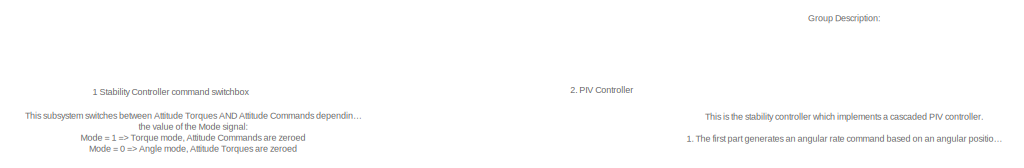
[diagram: STABILIZER - QDRONE - part 1/3, top left region]
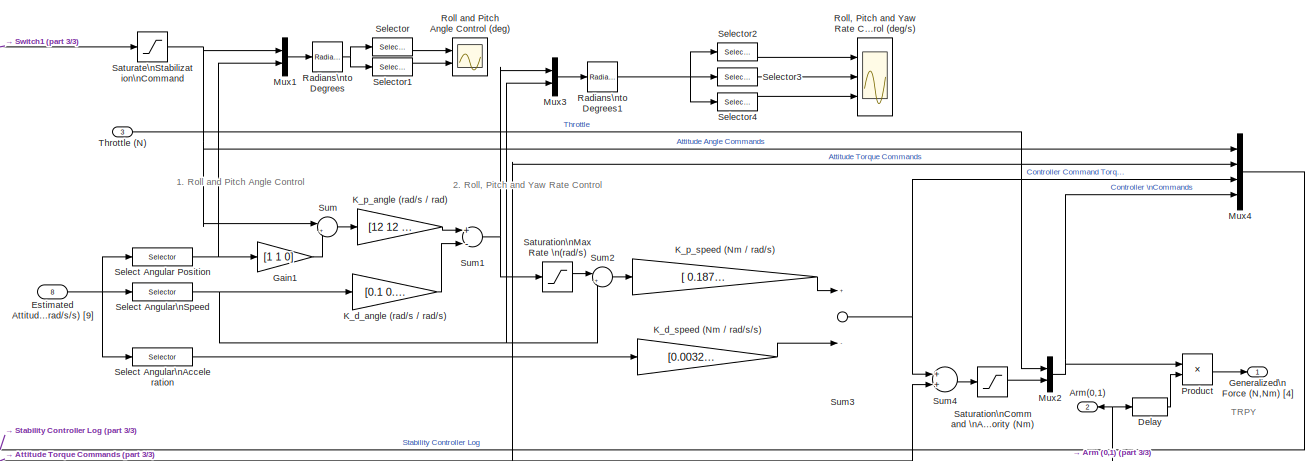
[diagram: STABILIZER - QDRONE - part 2/3, central region]
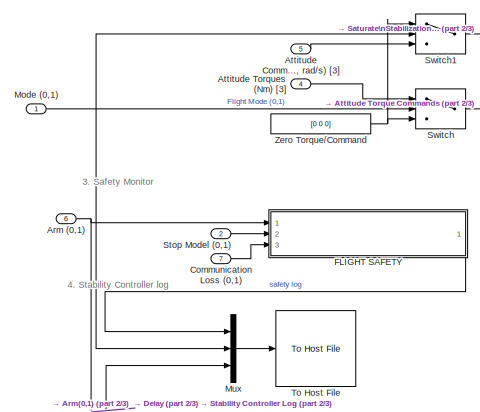
[diagram: STABILIZER - QDRONE - part 3/3, middle left region]
BLOCK [SubSystem] STABILIZER - QDRONE
  Ports = [8, 2]
  RequestExecContextInheritance = off
  SID = 11620
BLOCK [Inport] STABILIZER - QDRONE/Arm (0,1)
  IconDisplay = Port number
  Port = 6
  SID = 11627
BLOCK [Outport] STABILIZER - QDRONE/Arm(0,1)
  IconDisplay = Port number
  Port = 2
  SID = 11696
BLOCK [Inport] STABILIZER - QDRONE/Attitude Commands\n(rad, rad, rad//s) [3]
  IconDisplay = Port number
  Port = 5
  SID = 11625
BLOCK [Inport] STABILIZER - QDRONE/Attitude Torques (Nm) [3]
  IconDisplay = Port number
  Port = 4
  SID = 11624
BLOCK [Inport] STABILIZER - QDRONE/Communication Loss (0,1)
  IconDisplay = Port number
  Port = 7
  SID = 11626
BLOCK [Delay] STABILIZER - QDRONE/Delay
  DelayLength = 0.1/qc_get_step_size
  InputPortMap = u0
  Ports = [1, 1]
  SID = 11629
BLOCK [Inport] STABILIZER - QDRONE/Estimated Attitude\n(rad, rad//s, rad//s//s) [9]
  IconDisplay = Port number
  Port = 8
  SID = 11628
BLOCK [SubSystem] STABILIZER - QDRONE/FLIGHT SAFETY
  Ports = [3, 1]
  RequestExecContextInheritance = off
  SID = 11630
BLOCK [Inport] STABILIZER - QDRONE/FLIGHT SAFETY/Arm
  IconDisplay = Port number
  SID = 11631
BLOCK [Reference] STABILIZER - QDRONE/FLIGHT SAFETY/Communication  REF=quarc_library/Discontinuities/Threshold
  Ports = [1, 2]
  SID = 11634
  SourceBlock = quarc_library/Discontinuities/Threshold
  SourceProductName = The database <userpath><path> is locked, or a table in the database is locked. (database is locked)
  SourceType = Threshold
  duration = 1
  operator = >=
  param_src = Specify via dialog
  threshold = 0.5
BLOCK [Inport] STABILIZER - QDRONE/FLIGHT SAFETY/Communication Loss
  IconDisplay = Port number
  Port = 3
  SID = 11633
BLOCK [Reference] STABILIZER - QDRONE/FLIGHT SAFETY/Computation Time  REF=quarc_library/Sources/Time/Computation Time
  MultiThreadCoSim = auto
  Ports = [0, 1]
  SID = 11635
  SourceBlock = quarc_library/Sources/Time/Computation Time
  SourceProductName = The database <userpath><path> is locked, or a table in the database is locked. (database is locked)
  SourceType = Computation Time
  sample_time = qc_get_step_size
  use_cpu_time = off
  use_model = on
BLOCK [Scope] STABILIZER - QDRONE/FLIGHT SAFETY/Computation Time (s)
  Floating = off
  NumInputPorts = 1
  Ports = [1]
  SID = 11636
  ScopeSpecificationString = Simulink.scopes.TimeScopeBlockCfg('CurrentConfiguration', extmgr.ConfigurationSet(extmgr.Configuration('Core','General UI',true),extmgr.Configuration('Core','Source UI',true),extmgr.Configuration('Sources','WiredSimulink',true,'DataLoggingVariableName','ScopeData2'),extmgr.Configuration('Visuals','Time Domain',true,'SerializedDisplays',{struct('MinYLimReal','0.0004','MaxYLimReal','0.0017','YLabelR...<+1404ch>
BLOCK [DataTypeConversion] STABILIZER - QDRONE/FLIGHT SAFETY/Data Type Conversion1
  RndMeth = Floor
  SID = 11637
  SaturateOnIntegerOverflow = off
BLOCK [DataTypeConversion] STABILIZER - QDRONE/FLIGHT SAFETY/Data Type Conversion3
  OutDataTypeStr = double
  RndMeth = Floor
  SID = 11638
  SaturateOnIntegerOverflow = off
BLOCK [DataTypeConversion] STABILIZER - QDRONE/FLIGHT SAFETY/Data Type Conversion4
  RndMeth = Floor
  SID = 11639
  SaturateOnIntegerOverflow = off
BLOCK [DataTypeConversion] STABILIZER - QDRONE/FLIGHT SAFETY/Data Type Conversion5
  RndMeth = Floor
  SID = 11640
  SaturateOnIntegerOverflow = off
BLOCK [Reference] STABILIZER - QDRONE/FLIGHT SAFETY/HIL Watchdog  REF=quarc_library/Data Acquisition/Generic/Watchdog/HIL Watchdog
  AttributesFormatString = (%<object_name>)
  MultiThreadCoSim = auto
  Ports = [0, 1]
  SID = 11641
  SourceBlock = quarc_library/Data Acquisition/Generic/Watchdog/HIL Watchdog
  SourceProductName = QUARC Targets
  SourceType = HIL Watchdog
  UserData = DataTag4
  UserDataPersistent = on
  active = off
  object_name = HIL-1
  sample_time = qc_get_step_size
  timeout = 0.1
BLOCK [Logic] STABILIZER - QDRONE/FLIGHT SAFETY/Logical\nOperator1
  AllPortsSameDT = off
  OutDataTypeStr = boolean
  Ports = [2, 1]
  SID = 11642
BLOCK [Mux] STABILIZER - QDRONE/FLIGHT SAFETY/Mux
  DisplayOption = bar
  Ports = [4, 1]
  SID = 11643
BLOCK [Mux] STABILIZER - QDRONE/FLIGHT SAFETY/Mux1
  DisplayOption = bar
  Inputs = 2
  Ports = [2, 1]
  SID = 11644
BLOCK [Outport] STABILIZER - QDRONE/FLIGHT SAFETY/Safety Log
  IconDisplay = Port number
  SID = 11653
BLOCK [Reference] STABILIZER - QDRONE/FLIGHT SAFETY/Sample Time  REF=quarc_library/Sources/Time/Sample Time
  MultiThreadCoSim = auto
  Ports = [0, 1]
  Priority = -99
  SID = 11645
  SourceBlock = quarc_library/Sources/Time/Sample Time
  SourceProductName = The database <userpath><path> is locked, or a table in the database is locked. (database is locked)
  SourceType = Sample Time
  sample_time = qc_get_step_size
BLOCK [Scope] STABILIZER - QDRONE/FLIGHT SAFETY/Sample Time (s)
  Floating = off
  NumInputPorts = 1
  Ports = [1]
  SID = 11646
  ScopeSpecificationString = Simulink.scopes.TimeScopeBlockCfg('CurrentConfiguration', extmgr.ConfigurationSet(extmgr.Configuration('Core','General UI',true),extmgr.Configuration('Core','Source UI',true),extmgr.Configuration('Sources','WiredSimulink',true,'DataLoggingVariableName','ScopeData1'),extmgr.Configuration('Visuals','Time Domain',true,'SerializedDisplays',{struct('MinYLimReal','-0.00038','MaxYLimReal','0.00212','YLab...<+1408ch>
BLOCK [Inport] STABILIZER - QDRONE/FLIGHT SAFETY/Stop Model
  IconDisplay = Port number
  Port = 2
  SID = 11632
BLOCK [Reference] STABILIZER - QDRONE/FLIGHT SAFETY/Stop model  REF=quarc_library/Discontinuities/Threshold
  Ports = [1, 2]
  SID = 11647
  SourceBlock = quarc_library/Discontinuities/Threshold
  SourceProductName = The database <userpath><path> is locked, or a table in the database is locked. (database is locked)
  SourceType = Threshold
  duration = 0.1
  operator = >=
  param_src = Specify via dialog
  threshold = 0.5
BLOCK [Reference] STABILIZER - QDRONE/FLIGHT SAFETY/Stop with Message  REF=quarc_library/Sinks/Error Handling/Stop with Message
  AttributesFormatString = \"%<message>\"
  Ports = [1]
  SID = 11648
  SourceBlock = quarc_library/Sinks/Error Handling/Stop with Message
  SourceProductName = The database <userpath><path> is locked, or a table in the database is locked. (database is locked)
  SourceType = Stop with Message
  message = QDrone Stabilizer: Commander Terminated
  message_icon = Information
  message_type = Fixed error message
BLOCK [Reference] STABILIZER - QDRONE/FLIGHT SAFETY/Stop with Message1  REF=quarc_library/Sinks/Error Handling/Stop with Message
  AttributesFormatString = \"%<message>\"
  Ports = [1]
  SID = 11649
  SourceBlock = quarc_library/Sinks/Error Handling/Stop with Message
  SourceProductName = The database <userpath><path> is locked, or a table in the database is locked. (database is locked)
  SourceType = Stop with Message
  message = QDrone Stabilizer: Communication with Commander lost
  message_icon = Warning
  message_type = Fixed error message
BLOCK [Reference] STABILIZER - QDRONE/FLIGHT SAFETY/Stop with Message3  REF=quarc_library/Sinks/Error Handling/Stop with Message
  AttributesFormatString = \"%<message>\"
  Ports = [1]
  SID = 11650
  SourceBlock = quarc_library/Sinks/Error Handling/Stop with Message
  SourceProductName = The database <userpath><path> is locked, or a table in the database is locked. (database is locked)
  SourceType = Stop with Message
  message = QDrone Stabilizer: HIL Watchdog timer expired
  message_icon = Information
  message_type = Fixed error message
BLOCK [Terminator] STABILIZER - QDRONE/FLIGHT SAFETY/Terminator
  SID = 11651
BLOCK [Terminator] STABILIZER - QDRONE/FLIGHT SAFETY/Terminator1
  SID = 11652
BLOCK [Gain] STABILIZER - QDRONE/Gain1
  Gain = [1 1 0]
  OutDataTypeStr = Inherit: Inherit via internal rule
  ParamDataTypeStr = Inherit: Inherit via internal rule
  SID = 11660
  SaturateOnIntegerOverflow = off
BLOCK [Outport] STABILIZER - QDRONE/Generalized\n Force (N,Nm) [4]
  IconDisplay = Port number
  SID = 11695
BLOCK [Gain] STABILIZER - QDRONE/K_d_angle (rad//s // rad//s)
  Gain = [0.1 0.1 0]
  OutDataTypeStr = Inherit: Inherit via internal rule
  ParamDataTypeStr = Inherit: Inherit via internal rule
  SID = 11661
  SaturateOnIntegerOverflow = off
BLOCK [Gain] STABILIZER - QDRONE/K_d_speed (Nm // rad//s//s)
  Gain = [0.0032    0.0026     0]
  OutDataTypeStr = Inherit: Inherit via internal rule
  ParamDataTypeStr = Inherit: Inherit via internal rule
  SID = 11662
  SaturateOnIntegerOverflow = off
BLOCK [Gain] STABILIZER - QDRONE/K_p_angle (rad//s // rad)
  Gain = [12 12 1]
  OutDataTypeStr = Inherit: Inherit via internal rule
  ParamDataTypeStr = Inherit: Inherit via internal rule
  SID = 11663
  SaturateOnIntegerOverflow = off
BLOCK [Gain] STABILIZER - QDRONE/K_p_speed (Nm // rad//s)
  Gain = [ 0.1876    0.1544    0.0395]
  OutDataTypeStr = Inherit: Inherit via internal rule
  ParamDataTypeStr = Inherit: Inherit via internal rule
  SID = 11664
  SaturateOnIntegerOverflow = off
BLOCK [Inport] STABILIZER - QDRONE/Mode (0,1)
  IconDisplay = Port number
  SID = 11621
BLOCK [Mux] STABILIZER - QDRONE/Mux
  DisplayOption = bar
  Inputs = 3
  Ports = [3, 1]
  SID = 11665
BLOCK [Mux] STABILIZER - QDRONE/Mux1
  DisplayOption = bar
  Inputs = 2
  Ports = [2, 1]
  SID = 11666
BLOCK [Mux] STABILIZER - QDRONE/Mux2
  DisplayOption = bar
  Inputs = 2
  Ports = [2, 1]
  SID = 11667
BLOCK [Mux] STABILIZER - QDRONE/Mux3
  DisplayOption = bar
  Inputs = 2
  Ports = [2, 1]
  SID = 11668
BLOCK [Mux] STABILIZER - QDRONE/Mux4
  DisplayOption = bar
  Ports = [4, 1]
  SID = 11669
BLOCK [Product] STABILIZER - QDRONE/Product
  InputSameDT = off
  OutDataTypeStr = Inherit: Inherit via internal rule
  Ports = [2, 1]
  RndMeth = Floor
  SID = 11670
  SaturateOnIntegerOverflow = off
BLOCK [Reference] STABILIZER - QDRONE/Radians\nto Degrees  REF=simulink_extras/Transformations/Radians\nto Degrees
  Ports = [1, 1]
  SID = 11671
  SourceBlock = simulink_extras/Transformations/Radians\nto Degrees
  SourceProductBaseCode = SL
  SourceType = RadiansToDegrees
BLOCK [Reference] STABILIZER - QDRONE/Radians\nto Degrees1  REF=simulink_extras/Transformations/Radians\nto Degrees
  Ports = [1, 1]
  SID = 11672
  SourceBlock = simulink_extras/Transformations/Radians\nto Degrees
  SourceProductBaseCode = SL
  SourceType = RadiansToDegrees
BLOCK [Scope] STABILIZER - QDRONE/Roll and Pitch Angle Control (deg)
  Floating = off
  NumInputPorts = 2
  Ports = [2]
  SID = 11673
  ScopeSpecificationString = Simulink.scopes.TimeScopeBlockCfg('CurrentConfiguration', extmgr.ConfigurationSet(extmgr.Configuration('Core','General UI',true),extmgr.Configuration('Core','Source UI',true),extmgr.Configuration('Sources','WiredSimulink',true,'DataLoggingVariableName','ScopeData1'),extmgr.Configuration('Visuals','Time Domain',true,'SerializedDisplays',{struct('MinYLimReal','-34.66443','MaxYLimReal','50.83176','YL...<+2066ch>
BLOCK [Scope] STABILIZER - QDRONE/Roll, Pitch and Yaw Rate Control (deg//s)
  Floating = off
  NumInputPorts = 3
  Ports = [3]
  SID = 11674
  ScopeSpecificationString = Simulink.scopes.TimeScopeBlockCfg('CurrentConfiguration', extmgr.ConfigurationSet(extmgr.Configuration('Core','General UI',true),extmgr.Configuration('Core','Source UI',true),extmgr.Configuration('Sources','WiredSimulink',true,'DataLoggingVariableName','ScopeData2'),extmgr.Configuration('Visuals','Time Domain',true,'SerializedDisplays',{struct('MinYLimReal','-14.36675','MaxYLimReal','9.06149','YLa...<+2845ch>
BLOCK [Saturate] STABILIZER - QDRONE/Saturate\nStabilization\nCommand
  InputPortMap = u0
  LowerLimit = [-pi/4 -pi/4 -10*pi/18]
  Ports = [1, 1]
  SID = 11675
  UpperLimit = [pi/4 pi/4 10*pi/18]
BLOCK [Saturate] STABILIZER - QDRONE/Saturation\nCommand \nAuthority (Nm)
  InputPortMap = u0
  LowerLimit = -[1.0915 0.8984 0.0984]
  Ports = [1, 1]
  SID = 11676
  UpperLimit = [1.0915 0.8984 0.0984]
BLOCK [Saturate] STABILIZER - QDRONE/Saturation\nMax Rate \n(rad//s)
  InputPortMap = u0
  LowerLimit = -10*pi/3*[1 1 1]
  Ports = [1, 1]
  SID = 11677
  UpperLimit = 10*pi/3*[1 1 1]
BLOCK [Selector] STABILIZER - QDRONE/Select Angular Position
  IndexOptions = Index vector (dialog)
  Indices = [1:3]
  InputPortWidth = 9
  OutputSizes = 1
  Ports = [1, 1]
  SID = 11680
BLOCK [Selector] STABILIZER - QDRONE/Select Angular\nAcceleration
  IndexOptions = Index vector (dialog)
  Indices = [7:9]
  InputPortWidth = 9
  OutputSizes = 1
  Ports = [1, 1]
  SID = 11678
BLOCK [Selector] STABILIZER - QDRONE/Select Angular\nSpeed
  IndexOptions = Index vector (dialog)
  Indices = [4:6]
  InputPortWidth = 9
  OutputSizes = 1
  Ports = [1, 1]
  SID = 11679
BLOCK [Selector] STABILIZER - QDRONE/Selector
  IndexOptions = Index vector (dialog)
  Indices = [1 4]
  InputPortWidth = 6
  OutputSizes = 1
  Ports = [1, 1]
  SID = 11681
BLOCK [Selector] STABILIZER - QDRONE/Selector1
  IndexOptions = Index vector (dialog)
  Indices = [2 5]
  InputPortWidth = 6
  OutputSizes = 1
  Ports = [1, 1]
  SID = 11682
BLOCK [Selector] STABILIZER - QDRONE/Selector2
  IndexOptions = Index vector (dialog)
  Indices = [1 4]
  InputPortWidth = 6
  OutputSizes = 1
  Ports = [1, 1]
  SID = 11683
BLOCK [Selector] STABILIZER - QDRONE/Selector3
  IndexOptions = Index vector (dialog)
  Indices = [2 5]
  InputPortWidth = 6
  OutputSizes = 1
  Ports = [1, 1]
  SID = 11684
BLOCK [Selector] STABILIZER - QDRONE/Selector4
  IndexOptions = Index vector (dialog)
  Indices = [3 6]
  InputPortWidth = 6
  OutputSizes = 1
  Ports = [1, 1]
  SID = 11685
BLOCK [Inport] STABILIZER - QDRONE/Stop Model (0,1)
  IconDisplay = Port number
  Port = 2
  SID = 11622
BLOCK [Sum] STABILIZER - QDRONE/Sum
  IconShape = round
  InputSameDT = off
  Inputs = |+-
  OutDataTypeStr = Inherit: Inherit via internal rule
  Ports = [2, 1]
  SID = 11686
  SaturateOnIntegerOverflow = off
BLOCK [Sum] STABILIZER - QDRONE/Sum1
  InputSameDT = off
  Inputs = +-
  OutDataTypeStr = Inherit: Inherit via internal rule
  Ports = [2, 1]
  SID = 11687
  SaturateOnIntegerOverflow = off
BLOCK [Sum] STABILIZER - QDRONE/Sum2
  IconShape = round
  InputSameDT = off
  Inputs = |+-
  OutDataTypeStr = Inherit: Inherit via internal rule
  Ports = [2, 1]
  SID = 11688
  SaturateOnIntegerOverflow = off
BLOCK [Sum] STABILIZER - QDRONE/Sum3
  InputSameDT = off
  Inputs = +-
  OutDataTypeStr = Inherit: Inherit via internal rule
  Ports = [2, 1]
  SID = 11689
  SaturateOnIntegerOverflow = off
BLOCK [Sum] STABILIZER - QDRONE/Sum4
  InputSameDT = off
  OutDataTypeStr = Inherit: Inherit via internal rule
  Ports = [2, 1]
  SID = 11690
  SaturateOnIntegerOverflow = off
BLOCK [Switch] STABILIZER - QDRONE/Switch
  Criteria = u2 > Threshold
  InputSameDT = off
  SID = 11691
  SaturateOnIntegerOverflow = off
  Threshold = 0.5
BLOCK [Switch] STABILIZER - QDRONE/Switch1
  Criteria = u2 > Threshold
  InputSameDT = off
  SID = 11692
  SaturateOnIntegerOverflow = off
  Threshold = 0.5
BLOCK [Inport] STABILIZER - QDRONE/Throttle (N)
  IconDisplay = Port number
  Port = 3
  SID = 11623
BLOCK [Reference] STABILIZER - QDRONE/To Host File  REF=quarc_library/Sinks/To Host/To Host File
  AttributesFormatString = %<final_file_name>
  MultiThreadCoSim = auto
  Ports = [1]
  SID = 11693
  SourceBlock = quarc_library/Sinks/To Host/To Host File
  SourceProductName = The database <userpath><path> is locked, or a table in the database is locked. (database is locked)
  SourceType = To Host File
  append = off
  bitrate = 2000000
  decimation = 1
  file_format = MAT-file v.5
  file_name = saved_data/%m/Stabilizer_%{date}_%{time}.mat
  final_file_name = saved_data/Stabilizer_QDrone/Stabilizer_20-Jan-2022_08-52-39.mat
  options = No header or footer
  sample_time = -1
  variable_name = stabilizer_data
BLOCK [Constant] STABILIZER - QDRONE/Zero Torque//Command
  SID = 11694
  Value = [0 0 0]
BLOCK [Terminator] Terminator
  SID = 11710
BLOCK [Terminator] Terminator1
  SID = 11711
ANNOTATION (root): \n \n 1. Open the Model Configuration Settings under the Simulation Menu, or press Ctrl + E. Under the Code Generation > Interface tab, set the MEX-file arguments parameters 192.168.2.H to the IP address of the ground control station PC and 192.168.2.X to the IP address of the QDrone being targeted. \n 2. Under the QUARC menu, click on Build . \n 3. Ensure that the Mission_Server_QDrone_Manual_Fli...<+383ch>
ANNOTATION (root): \n \n Quanser Autonomous Vehicles Research Studio Stabilizer QDrone
ANNOTATION Communication: \n \n Argument (- IP_address ) is set at the MEX-file arguments found at Model Configuration Properties > Code Generation > Interface \n \n Format: tcpip://192.168.2.H:18001 \n where H is the last digits of your ground station's IP address (use ipconfig in a command prompt to find it out).
ANNOTATION PHYSICAL PLANT w// LINEAR THRUST: 1. Motor Command Generation
ANNOTATION PHYSICAL PLANT w// LINEAR THRUST: 1. Write to motors and LEDs
ANNOTATION PHYSICAL PLANT w// LINEAR THRUST: 2. QDrone DAQ
ANNOTATION PHYSICAL PLANT w// LINEAR THRUST: 2. Read the sensors and battery voltage
ANNOTATION PHYSICAL PLANT w// LINEAR THRUST: 3. BF Attitude Estimation
ANNOTATION PHYSICAL PLANT w// LINEAR THRUST: 4. Plant Log
ANNOTATION PHYSICAL PLANT w// LINEAR THRUST: \n \n Motor commands are written in the QDrone DAQ. This is the source of the sensor data as well. The Attitude and Height Estimator calculates estimates from sensor data, along with sensor calibration and conditioning.
ANNOTATION PHYSICAL PLANT w// LINEAR THRUST: \n \n Group Description: \n \n 1.Motor Command Generation: Converts generalized forces (N,Nm) from the stability controller into a set of normalized motor command percentages to be written as PWM inputs to the QDrone DAQ. \n 2. QDrone DAQ: Set of blocks used to configure the HIL target, which in this case is the QDrone. The write and read blocks are used to give you access to the instrumentation o...<+179ch>
ANNOTATION PHYSICAL PLANT w// LINEAR THRUST: \n \n Attitude Conditioning and Estimation
ANNOTATION PHYSICAL PLANT w// LINEAR THRUST: \n \n [ 1/(4*Kf) , -1/(2*Kf*L_roll) , 1/(2*Kf*L_pitch) , 1/(4*Kt) ;... \n 1/(4*Kf) , -1/(2*Kf*L_roll) , -1/(2*Kf*L_pitch) , -1/(4*Kt) ;... \n 1/(4*Kf) , 1/(2*Kf*L_roll) , 1/(2*Kf*L_pitch) , -1/(4*Kt) ;... \n 1/(4*Kf) , 1/(2*Kf*L_roll) , -1/(2*Kf*L_pitch) , 1/(4*Kt) ]; \n \n See Guides and Resources/Concepts/Drone Parametrization.pdf
ANNOTATION PHYSICAL PLANT w// LINEAR THRUST: \n \n DAQ
ANNOTATION PHYSICAL PLANT w// LINEAR THRUST: \n \n Motor commands are written to the QDrone via the HIL Write block. The motor command inputs are mapped for a Oneshot 125 protocol as follows: \n \n Percent Seconds Description \n 0% 125 us No Throttle \n 100% 250 us Max Throttle \n \n The input to the motors are written as time period (in seconds) of the PWM pulses (at 2kHz). \n \n LED colors can be set using a simple 3x1 ON (1) and OFF (0) v...<+17ch>
ANNOTATION PHYSICAL PLANT w// LINEAR THRUST: Accelerometer (m/s/s) [3]
ANNOTATION PHYSICAL PLANT w// LINEAR THRUST: Angular Acceleration Estimation via Filter + Derivative
ANNOTATION PHYSICAL PLANT w// LINEAR THRUST: Angular Acceleration\nEstimate (deg/s/s)
ANNOTATION PHYSICAL PLANT w// LINEAR THRUST: Attitude (deg)
ANNOTATION PHYSICAL PLANT w// LINEAR THRUST: Gyro and Accel data rate at 1000Hz
ANNOTATION PHYSICAL PLANT w// LINEAR THRUST: Pitch angle estimation via Complementary Filter
ANNOTATION PHYSICAL PLANT w// LINEAR THRUST: Rate Estimate (deg/s)
ANNOTATION PHYSICAL PLANT w// LINEAR THRUST: Roll And Pitch From Accelerometer Filter + Attitude Approximation
ANNOTATION PHYSICAL PLANT w// LINEAR THRUST: Roll angle estimation via Complementary Filter
ANNOTATION PHYSICAL PLANT w// LINEAR THRUST: The gyroscope readings are pre-calibrated and filtered. For hardware filtering settings, see the HIL Initialize block in DAQ. Gyroscope readings are very good estimates of the rotation rate of the system, and do not need further calibration/filtering. These readings are further differentiated to get angular acceleration estimates for use in the stabilization controllers.\n\nThe accelerometer readi...<+158ch>
ANNOTATION PHYSICAL PLANT w// LINEAR THRUST/Red - Low Voltage\nGreen - Armed\nBlue - Disarmed: Onboard LED
ANNOTATION PHYSICAL PLANT w// LINEAR THRUST/Red - Low Voltage\nGreen - Armed\nBlue - Disarmed: PCB LED 1
ANNOTATION PHYSICAL PLANT w// LINEAR THRUST/Red - Low Voltage\nGreen - Armed\nBlue - Disarmed: PCB LED 2
ANNOTATION PHYSICAL PLANT w// LINEAR THRUST/Red - Low Voltage\nGreen - Armed\nBlue - Disarmed: PCB LED 3
ANNOTATION PHYSICAL PLANT w// LINEAR THRUST/Red - Low Voltage\nGreen - Armed\nBlue - Disarmed: PCB LED 4
ANNOTATION PHYSICAL PLANT w// LINEAR THRUST/Red - Low Voltage\nGreen - Armed\nBlue - Disarmed: PCB LED 5
ANNOTATION PHYSICAL PLANT w// LINEAR THRUST/Sensor Failure Monitoring: Check for no data condition (flat-line zero) from any of the onboard sensors
ANNOTATION PHYSICAL PLANT w// LINEAR THRUST/Sensor Failure Monitoring/Sensor Failure (Accelerometer): Check for flat-line ZERO Accelerometer data (no data)
ANNOTATION PHYSICAL PLANT w// LINEAR THRUST/Sensor Failure Monitoring/Sensor Failure (Gyroscope): Check for flat-line ZERO Gyro data (no data)
ANNOTATION STABILIZER - QDRONE: 1 Stability Controller command switchbox
ANNOTATION STABILIZER - QDRONE: 1. Roll and Pitch Angle Control
ANNOTATION STABILIZER - QDRONE: 2. PIV Controller
ANNOTATION STABILIZER - QDRONE: 2. Roll, Pitch and Yaw Rate Control
ANNOTATION STABILIZER - QDRONE: 3. Safety Monitor
ANNOTATION STABILIZER - QDRONE: 4. Stability Controller log
ANNOTATION STABILIZER - QDRONE: \n \n This is the stability controller which implements a cascaded PIV controller. \n 1. The first part generates an angular rate command based on an angular position error. \n 2. The second part of the controller generates a torque command based on an angular rate error. \n \n The cascaded PIV controllers always stabilize with respect to the Attitude Commands (rad, rad/s) [3] setpoint. The Attitu...<+125ch>
ANNOTATION STABILIZER - QDRONE: \n \n Group Description: \n \n Depending on the value of Mode, switch between Torque based (Mode 1) or Angle based (Mode 0) stabilization. \n Implement the cascaded PIV controller with a torque disturbance to allow for both Torque based or Angle based stabilization. \n Monitor the health of this module, communication with the ground control station PC, etc. for safety reasons. \n Stability control...<+14ch>
ANNOTATION STABILIZER - QDRONE: TRPY
ANNOTATION STABILIZER - QDRONE: This subsystem switches between Attitude Torques AND Attitude Commands depending on \nthe value of the Mode signal: \nMode = 1 => Torque mode, Attitude Commands are zeroed\nMode = 0 => Angle mode, Attitude Torques are zeroed
ANNOTATION STABILIZER - QDRONE/FLIGHT SAFETY: \n \n Flight Safety Information \n \n When a warning/stop message pops up, this is the subsystem \n that generates them. \n \n Monitor Sample/Computation Time \n Stop this model \n when Stop Model is generated \n communication loss is detected \n Also log the watchdog monitor output
ANNOTATION STABILIZER - QDRONE/FLIGHT SAFETY: If communication with the model supplying reference commands has been lost for some time while the drone is armed, stop the model. This will shut off the motors as well.
ANNOTATION STABILIZER - QDRONE/FLIGHT SAFETY: If the model supplying reference commands triggers a STOP MODEL command, stop this model. This will shut off the motors as well.
ANNOTATION STABILIZER - QDRONE/FLIGHT SAFETY: If the watchdog times out, stop the model. This will shut off the motors as well.
ANNOTATION STABILIZER - QDRONE/FLIGHT SAFETY: Log Computation Time. This must be less than 0.001 s
ANNOTATION STABILIZER - QDRONE/FLIGHT SAFETY: Log Sample Time. This must be approximately 0.001 s
LINE Communication/Constant:1 -> Communication/Stream Client:2
LINE Communication/Data In:1 -> Communication/Delay:1
LINE Communication/Delay:1 -> Communication/Stream Client:1
LINE Communication/Detect Communication loss/Clock:1 -> Communication/Detect Communication loss/MATLAB Function:1
LINE Communication/Detect Communication loss/Data Out:1 -> Communication/Detect Communication loss/Grab throttle \ncommand to \ndetect flat lines:1
LINE Communication/Detect Communication loss/Data Type Conversion:1 -> Communication/Detect Communication loss/Communication Issue:1
LINE Communication/Detect Communication loss/Error:1 -> Communication/Detect Communication loss/MATLAB Function:3
LINE Communication/Detect Communication loss/Grab throttle \ncommand to \ndetect flat lines:1 -> Communication/Detect Communication loss/MATLAB Function:4
LINE Communication/Detect Communication loss/Logical\nOperator4:1 -> Communication/Detect Communication loss/Data Type Conversion:1
LINE Communication/Detect Communication loss/MATLAB Function/ Demux :1 -> Communication/Detect Communication loss/MATLAB Function/ Terminator :1
LINE Communication/Detect Communication loss/MATLAB Function/ SFunction :1 -> Communication/Detect Communication loss/MATLAB Function/ Demux :1
LINE Communication/Detect Communication loss/MATLAB Function/ SFunction :2 -> Communication/Detect Communication loss/MATLAB Function/stream_connection_loss:1
LINE Communication/Detect Communication loss/MATLAB Function/ SFunction :3 -> Communication/Detect Communication loss/MATLAB Function/data_loss:1
LINE Communication/Detect Communication loss/MATLAB Function/error:1 -> Communication/Detect Communication loss/MATLAB Function/ SFunction :3
LINE Communication/Detect Communication loss/MATLAB Function/ms_time:1 -> Communication/Detect Communication loss/MATLAB Function/ SFunction :4
LINE Communication/Detect Communication loss/MATLAB Function/state:1 -> Communication/Detect Communication loss/MATLAB Function/ SFunction :2
LINE Communication/Detect Communication loss/MATLAB Function/time:1 -> Communication/Detect Communication loss/MATLAB Function/ SFunction :1
LINE Communication/Detect Communication loss/MATLAB Function:1 -> Communication/Detect Communication loss/Threshold:1
LINE Communication/Detect Communication loss/MATLAB Function:2 -> Communication/Detect Communication loss/Threshold1:1
LINE Communication/Detect Communication loss/State:1 -> Communication/Detect Communication loss/MATLAB Function:2
LINE Communication/Detect Communication loss/Threshold1:1 -> Communication/Detect Communication loss/Logical\nOperator4:2
LINE Communication/Detect Communication loss/Threshold1:2 -> Communication/Detect Communication loss/Terminator3:1
LINE Communication/Detect Communication loss/Threshold:1 -> Communication/Detect Communication loss/Logical\nOperator4:1
LINE Communication/Detect Communication loss/Threshold:2 -> Communication/Detect Communication loss/Terminator2:1
LINE Communication/Detect Communication loss:1 -> Communication/Communication Issue:1
NET Communication/IP Address of \nSupervisory Model\n(Mission Operator//Commander):1 -> Communication/Stream Client:3, Communication/String Display:1
LINE Communication/Stream Client:1 -> Communication/Detect Communication loss:1
LINE Communication/Stream Client:2 -> Communication/Detect Communication loss:2
LINE Communication/Stream Client:3 -> Communication/Terminator:1
NET Communication/Stream Client:4 -> Communication/Data Out:1, Communication/Detect Communication loss:3
LINE Communication/Stream Client:5 -> Communication/Terminator1:1
NET Communication:1 -> Comm Issue:1, STABILIZER - QDRONE:7
LINE Communication:2 -> Demux1:1
LINE Demux1:1 -> STABILIZER - QDRONE:1
LINE Demux1:2 -> STABILIZER - QDRONE:2
LINE Demux1:3 -> STABILIZER - QDRONE:3
LINE Demux1:4 -> STABILIZER - QDRONE:4
LINE Demux1:5 -> STABILIZER - QDRONE:5
LINE Demux1:6 -> STABILIZER - QDRONE:6
LINE Demux1:7 -> Communication:1
LINE PHYSICAL PLANT w// LINEAR THRUST/Accel (m//s//s) [3]:1 -> PHYSICAL PLANT w// LINEAR THRUST/Mux2:2
NET PHYSICAL PLANT w// LINEAR THRUST/Arm (0,1):1 -> PHYSICAL PLANT w// LINEAR THRUST/Product1:2, PHYSICAL PLANT w// LINEAR THRUST/Red - Low Voltage\nGreen - Armed\nBlue - Disarmed:1
LINE PHYSICAL PLANT w// LINEAR THRUST/Battery Level, \nAccelrometer and \nGyroscope:1 -> PHYSICAL PLANT w// LINEAR THRUST/Conversion:1
NET PHYSICAL PLANT w// LINEAR THRUST/Battery Level, \nAccelrometer and \nGyroscope:2 -> PHYSICAL PLANT w// LINEAR THRUST/Accel (m//s//s) [3]:1, PHYSICAL PLANT w// LINEAR THRUST/Gyro (rad//s) [3]:1
LINE PHYSICAL PLANT w// LINEAR THRUST/Bias - Pulse \nOffset (%):1 -> PHYSICAL PLANT w// LINEAR THRUST/HIL Write:1
NET PHYSICAL PLANT w// LINEAR THRUST/Check Battery level/Battery level:1 -> PHYSICAL PLANT w// LINEAR THRUST/Check Battery level/Compare\nTo Constant1:1, PHYSICAL PLANT w// LINEAR THRUST/Check Battery level/Compare\nTo Constant:1
LINE PHYSICAL PLANT w// LINEAR THRUST/Check Battery level/Compare\nTo Constant1:1 -> PHYSICAL PLANT w// LINEAR THRUST/Check Battery level/Logical\nOperator:1
LINE PHYSICAL PLANT w// LINEAR THRUST/Check Battery level/Compare\nTo Constant:1 -> PHYSICAL PLANT w// LINEAR THRUST/Check Battery level/Data Type Conversion:1
LINE PHYSICAL PLANT w// LINEAR THRUST/Check Battery level/Data Type Conversion1:1 -> PHYSICAL PLANT w// LINEAR THRUST/Check Battery level/Low Battery:1
LINE PHYSICAL PLANT w// LINEAR THRUST/Check Battery level/Data Type Conversion:1 -> PHYSICAL PLANT w// LINEAR THRUST/Check Battery level/Threshold:1
LINE PHYSICAL PLANT w// LINEAR THRUST/Check Battery level/Logical\nOperator:1 -> PHYSICAL PLANT w// LINEAR THRUST/Check Battery level/Data Type Conversion1:1
LINE PHYSICAL PLANT w// LINEAR THRUST/Check Battery level/Threshold:1 -> PHYSICAL PLANT w// LINEAR THRUST/Check Battery level/Logical\nOperator:2
LINE PHYSICAL PLANT w// LINEAR THRUST/Check Battery level/Threshold:2 -> PHYSICAL PLANT w// LINEAR THRUST/Check Battery level/Terminator:1
NET PHYSICAL PLANT w// LINEAR THRUST/Check Battery level:1 -> PHYSICAL PLANT w// LINEAR THRUST/Low Battery (0,1):1, PHYSICAL PLANT w// LINEAR THRUST/Mux3:2, PHYSICAL PLANT w// LINEAR THRUST/Red - Low Voltage\nGreen - Armed\nBlue - Disarmed:2
LINE PHYSICAL PLANT w// LINEAR THRUST/Constant10:1 -> PHYSICAL PLANT w// LINEAR THRUST/Second-Order\nLow-Pass Filter 1:3
LINE PHYSICAL PLANT w// LINEAR THRUST/Constant1:1 -> PHYSICAL PLANT w// LINEAR THRUST/Product:1
LINE PHYSICAL PLANT w// LINEAR THRUST/Constant2:1 -> PHYSICAL PLANT w// LINEAR THRUST/Second-Order\nLow-Pass Filter\n(Yaw Rate):3
LINE PHYSICAL PLANT w// LINEAR THRUST/Constant9:1 -> PHYSICAL PLANT w// LINEAR THRUST/Second-Order\nLow-Pass Filter 1:2
LINE PHYSICAL PLANT w// LINEAR THRUST/Constant:1 -> PHYSICAL PLANT w// LINEAR THRUST/Second-Order\nLow-Pass Filter\n(Yaw Rate):2
NET PHYSICAL PLANT w// LINEAR THRUST/Conversion:1 -> PHYSICAL PLANT w// LINEAR THRUST/Battery level  (V):1, PHYSICAL PLANT w// LINEAR THRUST/Check Battery level:1, PHYSICAL PLANT w// LINEAR THRUST/Mux3:1
LINE PHYSICAL PLANT w// LINEAR THRUST/Demux1:1 -> PHYSICAL PLANT w// LINEAR THRUST/Attitude (deg):1
LINE PHYSICAL PLANT w// LINEAR THRUST/Demux1:2 -> PHYSICAL PLANT w// LINEAR THRUST/Attitude (deg):2
LINE PHYSICAL PLANT w// LINEAR THRUST/Demux1:3 -> PHYSICAL PLANT w// LINEAR THRUST/Attitude (deg):3
LINE PHYSICAL PLANT w// LINEAR THRUST/Demux2:1 -> PHYSICAL PLANT w// LINEAR THRUST/Sum1:1
LINE PHYSICAL PLANT w// LINEAR THRUST/Demux2:2 -> PHYSICAL PLANT w// LINEAR THRUST/Sum3:1
LINE PHYSICAL PLANT w// LINEAR THRUST/Demux2:3 -> PHYSICAL PLANT w// LINEAR THRUST/Integrator5:1
LINE PHYSICAL PLANT w// LINEAR THRUST/Demux3:1 -> PHYSICAL PLANT w// LINEAR THRUST/Rate Estimate (deg//s):1
LINE PHYSICAL PLANT w// LINEAR THRUST/Demux3:2 -> PHYSICAL PLANT w// LINEAR THRUST/Rate Estimate (deg//s):2
LINE PHYSICAL PLANT w// LINEAR THRUST/Demux3:3 -> PHYSICAL PLANT w// LINEAR THRUST/Rate Estimate (deg//s):3
LINE PHYSICAL PLANT w// LINEAR THRUST/Demux5:1 -> PHYSICAL PLANT w// LINEAR THRUST/Angular Acceleration\nEstimate (deg//s//s):1
LINE PHYSICAL PLANT w// LINEAR THRUST/Demux5:2 -> PHYSICAL PLANT w// LINEAR THRUST/Angular Acceleration\nEstimate (deg//s//s):2
LINE PHYSICAL PLANT w// LINEAR THRUST/Demux5:3 -> PHYSICAL PLANT w// LINEAR THRUST/Angular Acceleration\nEstimate (deg//s//s):3
NET PHYSICAL PLANT w// LINEAR THRUST/Demux:1 -> PHYSICAL PLANT w// LINEAR THRUST/Demux2:1, PHYSICAL PLANT w// LINEAR THRUST/Mux1:2, PHYSICAL PLANT w// LINEAR THRUST/Radians\nto Degrees1:1, PHYSICAL PLANT w// LINEAR THRUST/Second-Order\nLow-Pass Filter\n(Yaw Rate):1, PHYSICAL PLANT w// LINEAR THRUST/Second-Order\nLow-Pass Filter\n(Yaw Rate):4
NET PHYSICAL PLANT w// LINEAR THRUST/Demux:2 -> PHYSICAL PLANT w// LINEAR THRUST/Second-Order\nLow-Pass Filter 1:1, PHYSICAL PLANT w// LINEAR THRUST/Second-Order\nLow-Pass Filter 1:4
LINE PHYSICAL PLANT w// LINEAR THRUST/Generalized Force\n(N, Nm) [4]:1 -> PHYSICAL PLANT w// LINEAR THRUST/Product:2
LINE PHYSICAL PLANT w// LINEAR THRUST/Gyro (rad//s) [3]:1 -> PHYSICAL PLANT w// LINEAR THRUST/Mux2:1
LINE PHYSICAL PLANT w// LINEAR THRUST/Integrator1:1 -> PHYSICAL PLANT w// LINEAR THRUST/Sum1:3
NET PHYSICAL PLANT w// LINEAR THRUST/Integrator2:1 -> PHYSICAL PLANT w// LINEAR THRUST/Mux4:2, PHYSICAL PLANT w// LINEAR THRUST/Sum2:2
LINE PHYSICAL PLANT w// LINEAR THRUST/Integrator3:1 -> PHYSICAL PLANT w// LINEAR THRUST/Sum3:3
LINE PHYSICAL PLANT w// LINEAR THRUST/Integrator5:1 -> PHYSICAL PLANT w// LINEAR THRUST/Mux4:3
NET PHYSICAL PLANT w// LINEAR THRUST/Integrator:1 -> PHYSICAL PLANT w// LINEAR THRUST/Mux4:1, PHYSICAL PLANT w// LINEAR THRUST/Sum:2
LINE PHYSICAL PLANT w// LINEAR THRUST/Ki1:1 -> PHYSICAL PLANT w// LINEAR THRUST/Integrator3:1
LINE PHYSICAL PLANT w// LINEAR THRUST/Ki:1 -> PHYSICAL PLANT w// LINEAR THRUST/Integrator1:1
LINE PHYSICAL PLANT w// LINEAR THRUST/Kp1:1 -> PHYSICAL PLANT w// LINEAR THRUST/Sum3:2
LINE PHYSICAL PLANT w// LINEAR THRUST/Kp:1 -> PHYSICAL PLANT w// LINEAR THRUST/Sum1:2
NET PHYSICAL PLANT w// LINEAR THRUST/Maximum \nCommand\nAuthority :1 -> PHYSICAL PLANT w// LINEAR THRUST/Mux:1, PHYSICAL PLANT w// LINEAR THRUST/Product1:1
NET PHYSICAL PLANT w// LINEAR THRUST/Mux1:1 -> PHYSICAL PLANT w// LINEAR THRUST/BF Estimated Attitude\n(rad, rad//s, rad//s//s) [9]:1, PHYSICAL PLANT w// LINEAR THRUST/Mux:2
NET PHYSICAL PLANT w// LINEAR THRUST/Mux2:1 -> PHYSICAL PLANT w// LINEAR THRUST/BF IMU Data (rad//s, m//s//s) [6]:1, PHYSICAL PLANT w// LINEAR THRUST/Demux:1, PHYSICAL PLANT w// LINEAR THRUST/Mux:3, PHYSICAL PLANT w// LINEAR THRUST/Sensor Failure Monitoring:1
LINE PHYSICAL PLANT w// LINEAR THRUST/Mux3:1 -> PHYSICAL PLANT w// LINEAR THRUST/Mux:4
NET PHYSICAL PLANT w// LINEAR THRUST/Mux4:1 -> PHYSICAL PLANT w// LINEAR THRUST/ BF Attitude Estimate (rad) [3]:1, PHYSICAL PLANT w// LINEAR THRUST/Mux1:1, PHYSICAL PLANT w// LINEAR THRUST/Radians\nto Degrees:1
LINE PHYSICAL PLANT w// LINEAR THRUST/Mux:1 -> PHYSICAL PLANT w// LINEAR THRUST/To Host File:1
LINE PHYSICAL PLANT w// LINEAR THRUST/Percent \nto quarter:1 -> PHYSICAL PLANT w// LINEAR THRUST/Bias - Pulse \nOffset (%):1
LINE PHYSICAL PLANT w// LINEAR THRUST/Product1:1 -> PHYSICAL PLANT w// LINEAR THRUST/Percent \nto quarter:1
LINE PHYSICAL PLANT w// LINEAR THRUST/Product:1 -> PHYSICAL PLANT w// LINEAR THRUST/Maximum \nCommand\nAuthority :1
LINE PHYSICAL PLANT w// LINEAR THRUST/Radians\nto Degrees1:1 -> PHYSICAL PLANT w// LINEAR THRUST/Demux3:1
LINE PHYSICAL PLANT w// LINEAR THRUST/Radians\nto Degrees2:1 -> PHYSICAL PLANT w// LINEAR THRUST/Demux5:1
LINE PHYSICAL PLANT w// LINEAR THRUST/Radians\nto Degrees:1 -> PHYSICAL PLANT w// LINEAR THRUST/Demux1:1
LINE PHYSICAL PLANT w// LINEAR THRUST/Red - Low Voltage\nGreen - Armed\nBlue - Disarmed/Arm (0,1):1 -> PHYSICAL PLANT w// LINEAR THRUST/Red - Low Voltage\nGreen - Armed\nBlue - Disarmed/MATLAB Function\nLED Color Assignment:1
LINE PHYSICAL PLANT w// LINEAR THRUST/Red - Low Voltage\nGreen - Armed\nBlue - Disarmed/Blue:1 -> PHYSICAL PLANT w// LINEAR THRUST/Red - Low Voltage\nGreen - Armed\nBlue - Disarmed/Multiport\nSwitch:4
LINE PHYSICAL PLANT w// LINEAR THRUST/Red - Low Voltage\nGreen - Armed\nBlue - Disarmed/Green:1 -> PHYSICAL PLANT w// LINEAR THRUST/Red - Low Voltage\nGreen - Armed\nBlue - Disarmed/Multiport\nSwitch:3
LINE PHYSICAL PLANT w// LINEAR THRUST/Red - Low Voltage\nGreen - Armed\nBlue - Disarmed/Low Battery (0,1):1 -> PHYSICAL PLANT w// LINEAR THRUST/Red - Low Voltage\nGreen - Armed\nBlue - Disarmed/MATLAB Function\nLED Color Assignment:2
LINE PHYSICAL PLANT w// LINEAR THRUST/Red - Low Voltage\nGreen - Armed\nBlue - Disarmed/MATLAB Function\nLED Color Assignment/ Demux :1 -> PHYSICAL PLANT w// LINEAR THRUST/Red - Low Voltage\nGreen - Armed\nBlue - Disarmed/MATLAB Function\nLED Color Assignment/ Terminator :1
LINE PHYSICAL PLANT w// LINEAR THRUST/Red - Low Voltage\nGreen - Armed\nBlue - Disarmed/MATLAB Function\nLED Color Assignment/ SFunction :1 -> PHYSICAL PLANT w// LINEAR THRUST/Red - Low Voltage\nGreen - Armed\nBlue - Disarmed/MATLAB Function\nLED Color Assignment/ Demux :1
LINE PHYSICAL PLANT w// LINEAR THRUST/Red - Low Voltage\nGreen - Armed\nBlue - Disarmed/MATLAB Function\nLED Color Assignment/ SFunction :2 -> PHYSICAL PLANT w// LINEAR THRUST/Red - Low Voltage\nGreen - Armed\nBlue - Disarmed/MATLAB Function\nLED Color Assignment/value:1
LINE PHYSICAL PLANT w// LINEAR THRUST/Red - Low Voltage\nGreen - Armed\nBlue - Disarmed/MATLAB Function\nLED Color Assignment/arm:1 -> PHYSICAL PLANT w// LINEAR THRUST/Red - Low Voltage\nGreen - Armed\nBlue - Disarmed/MATLAB Function\nLED Color Assignment/ SFunction :1
LINE PHYSICAL PLANT w// LINEAR THRUST/Red - Low Voltage\nGreen - Armed\nBlue - Disarmed/MATLAB Function\nLED Color Assignment/low_battery:1 -> PHYSICAL PLANT w// LINEAR THRUST/Red - Low Voltage\nGreen - Armed\nBlue - Disarmed/MATLAB Function\nLED Color Assignment/ SFunction :2
LINE PHYSICAL PLANT w// LINEAR THRUST/Red - Low Voltage\nGreen - Armed\nBlue - Disarmed/MATLAB Function\nLED Color Assignment:1 -> PHYSICAL PLANT w// LINEAR THRUST/Red - Low Voltage\nGreen - Armed\nBlue - Disarmed/Multiport\nSwitch:1
NET PHYSICAL PLANT w// LINEAR THRUST/Red - Low Voltage\nGreen - Armed\nBlue - Disarmed/Multiport\nSwitch:1 -> PHYSICAL PLANT w// LINEAR THRUST/Red - Low Voltage\nGreen - Armed\nBlue - Disarmed/Mux:1, PHYSICAL PLANT w// LINEAR THRUST/Red - Low Voltage\nGreen - Armed\nBlue - Disarmed/Mux:2, PHYSICAL PLANT w// LINEAR THRUST/Red - Low Voltage\nGreen - Armed\nBlue - Disarmed/Mux:3, PHYSICAL PLANT w// LINEAR THRUST/Red - Low Voltage\nGreen - Armed\nBlue - Disarmed/Mux:4, PHYSICAL PLANT w// LINEAR THRUST/Red - Low Voltage\nGreen - Armed\nBlue - Disarmed/Mux:5, PHYSICAL PLANT w// LINEAR THRUST/Red - Low Voltage\nGreen - Armed\nBlue - Disarmed/Mux:6
LINE PHYSICAL PLANT w// LINEAR THRUST/Red - Low Voltage\nGreen - Armed\nBlue - Disarmed/Mux:1 -> PHYSICAL PLANT w// LINEAR THRUST/Red - Low Voltage\nGreen - Armed\nBlue - Disarmed/LEDs (%) [18]:1
LINE PHYSICAL PLANT w// LINEAR THRUST/Red - Low Voltage\nGreen - Armed\nBlue - Disarmed/Red:1 -> PHYSICAL PLANT w// LINEAR THRUST/Red - Low Voltage\nGreen - Armed\nBlue - Disarmed/Multiport\nSwitch:2
LINE PHYSICAL PLANT w// LINEAR THRUST/Red - Low Voltage\nGreen - Armed\nBlue - Disarmed:1 -> PHYSICAL PLANT w// LINEAR THRUST/HIL Write:2
LINE PHYSICAL PLANT w// LINEAR THRUST/Second-Order\nLow-Pass Filter 1:1 -> PHYSICAL PLANT w// LINEAR THRUST/roll and pitch approximation \nfrom accelerometer:1
LINE PHYSICAL PLANT w// LINEAR THRUST/Second-Order\nLow-Pass Filter 1:2 -> PHYSICAL PLANT w// LINEAR THRUST/Terminator1:1
LINE PHYSICAL PLANT w// LINEAR THRUST/Second-Order\nLow-Pass Filter\n(Yaw Rate):1 -> PHYSICAL PLANT w// LINEAR THRUST/Terminator6:1
NET PHYSICAL PLANT w// LINEAR THRUST/Second-Order\nLow-Pass Filter\n(Yaw Rate):2 -> PHYSICAL PLANT w// LINEAR THRUST/Mux1:3, PHYSICAL PLANT w// LINEAR THRUST/Radians\nto Degrees2:1
LINE PHYSICAL PLANT w// LINEAR THRUST/Sensor Failure Monitoring/Data Type Conversion1:1 -> PHYSICAL PLANT w// LINEAR THRUST/Sensor Failure Monitoring/Mux:2
LINE PHYSICAL PLANT w// LINEAR THRUST/Sensor Failure Monitoring/Data Type Conversion2:1 -> PHYSICAL PLANT w// LINEAR THRUST/Sensor Failure Monitoring/Mux:1
LINE PHYSICAL PLANT w// LINEAR THRUST/Sensor Failure Monitoring/Data Type Conversion4:1 -> PHYSICAL PLANT w// LINEAR THRUST/Sensor Failure Monitoring/Sensor Failure:1
LINE PHYSICAL PLANT w// LINEAR THRUST/Sensor Failure Monitoring/Demux:1 -> PHYSICAL PLANT w// LINEAR THRUST/Sensor Failure Monitoring/Sensor Failure (Gyroscope):1
LINE PHYSICAL PLANT w// LINEAR THRUST/Sensor Failure Monitoring/Demux:2 -> PHYSICAL PLANT w// LINEAR THRUST/Sensor Failure Monitoring/Sensor Failure (Accelerometer):1
LINE PHYSICAL PLANT w// LINEAR THRUST/Sensor Failure Monitoring/Logical\nOperator:1 -> PHYSICAL PLANT w// LINEAR THRUST/Sensor Failure Monitoring/Data Type Conversion4:1
LINE PHYSICAL PLANT w// LINEAR THRUST/Sensor Failure Monitoring/Mux:1 -> PHYSICAL PLANT w// LINEAR THRUST/Sensor Failure Monitoring/Logical\nOperator:1
LINE PHYSICAL PLANT w// LINEAR THRUST/Sensor Failure Monitoring/Sensor Data [6]:1 -> PHYSICAL PLANT w// LINEAR THRUST/Sensor Failure Monitoring/Demux:1
LINE PHYSICAL PLANT w// LINEAR THRUST/Sensor Failure Monitoring/Sensor Failure (Accelerometer)/Clock:1 -> PHYSICAL PLANT w// LINEAR THRUST/Sensor Failure Monitoring/Sensor Failure (Accelerometer)/Compare\nTo Constant:1
LINE PHYSICAL PLANT w// LINEAR THRUST/Sensor Failure Monitoring/Sensor Failure (Accelerometer)/Compare\nTo Constant:1 -> PHYSICAL PLANT w// LINEAR THRUST/Sensor Failure Monitoring/Sensor Failure (Accelerometer)/Logical\nOperator1:1
LINE PHYSICAL PLANT w// LINEAR THRUST/Sensor Failure Monitoring/Sensor Failure (Accelerometer)/Demux1:1 -> PHYSICAL PLANT w// LINEAR THRUST/Sensor Failure Monitoring/Sensor Failure (Accelerometer)/Threshold:1
LINE PHYSICAL PLANT w// LINEAR THRUST/Sensor Failure Monitoring/Sensor Failure (Accelerometer)/Demux1:2 -> PHYSICAL PLANT w// LINEAR THRUST/Sensor Failure Monitoring/Sensor Failure (Accelerometer)/Threshold1:1
LINE PHYSICAL PLANT w// LINEAR THRUST/Sensor Failure Monitoring/Sensor Failure (Accelerometer)/Demux1:3 -> PHYSICAL PLANT w// LINEAR THRUST/Sensor Failure Monitoring/Sensor Failure (Accelerometer)/Threshold2:1
LINE PHYSICAL PLANT w// LINEAR THRUST/Sensor Failure Monitoring/Sensor Failure (Accelerometer)/Logical\nOperator1:1 -> PHYSICAL PLANT w// LINEAR THRUST/Sensor Failure Monitoring/Sensor Failure (Accelerometer)/Sensor Fault:1
LINE PHYSICAL PLANT w// LINEAR THRUST/Sensor Failure Monitoring/Sensor Failure (Accelerometer)/Logical\nOperator:1 -> PHYSICAL PLANT w// LINEAR THRUST/Sensor Failure Monitoring/Sensor Failure (Accelerometer)/Logical\nOperator1:2
LINE PHYSICAL PLANT w// LINEAR THRUST/Sensor Failure Monitoring/Sensor Failure (Accelerometer)/Sensor\nInput:1 -> PHYSICAL PLANT w// LINEAR THRUST/Sensor Failure Monitoring/Sensor Failure (Accelerometer)/Demux1:1
LINE PHYSICAL PLANT w// LINEAR THRUST/Sensor Failure Monitoring/Sensor Failure (Accelerometer)/Threshold1:1 -> PHYSICAL PLANT w// LINEAR THRUST/Sensor Failure Monitoring/Sensor Failure (Accelerometer)/Logical\nOperator:2
LINE PHYSICAL PLANT w// LINEAR THRUST/Sensor Failure Monitoring/Sensor Failure (Accelerometer)/Threshold1:2 -> PHYSICAL PLANT w// LINEAR THRUST/Sensor Failure Monitoring/Sensor Failure (Accelerometer)/Terminator3:1
LINE PHYSICAL PLANT w// LINEAR THRUST/Sensor Failure Monitoring/Sensor Failure (Accelerometer)/Threshold2:1 -> PHYSICAL PLANT w// LINEAR THRUST/Sensor Failure Monitoring/Sensor Failure (Accelerometer)/Logical\nOperator:3
LINE PHYSICAL PLANT w// LINEAR THRUST/Sensor Failure Monitoring/Sensor Failure (Accelerometer)/Threshold2:2 -> PHYSICAL PLANT w// LINEAR THRUST/Sensor Failure Monitoring/Sensor Failure (Accelerometer)/Terminator4:1
LINE PHYSICAL PLANT w// LINEAR THRUST/Sensor Failure Monitoring/Sensor Failure (Accelerometer)/Threshold:1 -> PHYSICAL PLANT w// LINEAR THRUST/Sensor Failure Monitoring/Sensor Failure (Accelerometer)/Logical\nOperator:1
LINE PHYSICAL PLANT w// LINEAR THRUST/Sensor Failure Monitoring/Sensor Failure (Accelerometer)/Threshold:2 -> PHYSICAL PLANT w// LINEAR THRUST/Sensor Failure Monitoring/Sensor Failure (Accelerometer)/Terminator1:1
LINE PHYSICAL PLANT w// LINEAR THRUST/Sensor Failure Monitoring/Sensor Failure (Accelerometer):1 -> PHYSICAL PLANT w// LINEAR THRUST/Sensor Failure Monitoring/Data Type Conversion1:1
LINE PHYSICAL PLANT w// LINEAR THRUST/Sensor Failure Monitoring/Sensor Failure (Gyroscope)/Clock:1 -> PHYSICAL PLANT w// LINEAR THRUST/Sensor Failure Monitoring/Sensor Failure (Gyroscope)/Compare\nTo Constant:1
LINE PHYSICAL PLANT w// LINEAR THRUST/Sensor Failure Monitoring/Sensor Failure (Gyroscope)/Compare\nTo Constant:1 -> PHYSICAL PLANT w// LINEAR THRUST/Sensor Failure Monitoring/Sensor Failure (Gyroscope)/Logical\nOperator1:1
LINE PHYSICAL PLANT w// LINEAR THRUST/Sensor Failure Monitoring/Sensor Failure (Gyroscope)/Demux1:1 -> PHYSICAL PLANT w// LINEAR THRUST/Sensor Failure Monitoring/Sensor Failure (Gyroscope)/Threshold:1
LINE PHYSICAL PLANT w// LINEAR THRUST/Sensor Failure Monitoring/Sensor Failure (Gyroscope)/Demux1:2 -> PHYSICAL PLANT w// LINEAR THRUST/Sensor Failure Monitoring/Sensor Failure (Gyroscope)/Threshold1:1
LINE PHYSICAL PLANT w// LINEAR THRUST/Sensor Failure Monitoring/Sensor Failure (Gyroscope)/Demux1:3 -> PHYSICAL PLANT w// LINEAR THRUST/Sensor Failure Monitoring/Sensor Failure (Gyroscope)/Threshold2:1
LINE PHYSICAL PLANT w// LINEAR THRUST/Sensor Failure Monitoring/Sensor Failure (Gyroscope)/Logical\nOperator1:1 -> PHYSICAL PLANT w// LINEAR THRUST/Sensor Failure Monitoring/Sensor Failure (Gyroscope)/Sensor Fault:1
LINE PHYSICAL PLANT w// LINEAR THRUST/Sensor Failure Monitoring/Sensor Failure (Gyroscope)/Logical\nOperator:1 -> PHYSICAL PLANT w// LINEAR THRUST/Sensor Failure Monitoring/Sensor Failure (Gyroscope)/Logical\nOperator1:2
LINE PHYSICAL PLANT w// LINEAR THRUST/Sensor Failure Monitoring/Sensor Failure (Gyroscope)/Sensor\nInput:1 -> PHYSICAL PLANT w// LINEAR THRUST/Sensor Failure Monitoring/Sensor Failure (Gyroscope)/Demux1:1
LINE PHYSICAL PLANT w// LINEAR THRUST/Sensor Failure Monitoring/Sensor Failure (Gyroscope)/Threshold1:1 -> PHYSICAL PLANT w// LINEAR THRUST/Sensor Failure Monitoring/Sensor Failure (Gyroscope)/Logical\nOperator:2
LINE PHYSICAL PLANT w// LINEAR THRUST/Sensor Failure Monitoring/Sensor Failure (Gyroscope)/Threshold1:2 -> PHYSICAL PLANT w// LINEAR THRUST/Sensor Failure Monitoring/Sensor Failure (Gyroscope)/Terminator3:1
LINE PHYSICAL PLANT w// LINEAR THRUST/Sensor Failure Monitoring/Sensor Failure (Gyroscope)/Threshold2:1 -> PHYSICAL PLANT w// LINEAR THRUST/Sensor Failure Monitoring/Sensor Failure (Gyroscope)/Logical\nOperator:3
LINE PHYSICAL PLANT w// LINEAR THRUST/Sensor Failure Monitoring/Sensor Failure (Gyroscope)/Threshold2:2 -> PHYSICAL PLANT w// LINEAR THRUST/Sensor Failure Monitoring/Sensor Failure (Gyroscope)/Terminator4:1
LINE PHYSICAL PLANT w// LINEAR THRUST/Sensor Failure Monitoring/Sensor Failure (Gyroscope)/Threshold:1 -> PHYSICAL PLANT w// LINEAR THRUST/Sensor Failure Monitoring/Sensor Failure (Gyroscope)/Logical\nOperator:1
LINE PHYSICAL PLANT w// LINEAR THRUST/Sensor Failure Monitoring/Sensor Failure (Gyroscope)/Threshold:2 -> PHYSICAL PLANT w// LINEAR THRUST/Sensor Failure Monitoring/Sensor Failure (Gyroscope)/Terminator1:1
LINE PHYSICAL PLANT w// LINEAR THRUST/Sensor Failure Monitoring/Sensor Failure (Gyroscope):1 -> PHYSICAL PLANT w// LINEAR THRUST/Sensor Failure Monitoring/Data Type Conversion2:1
NET PHYSICAL PLANT w// LINEAR THRUST/Sensor Failure Monitoring:1 -> PHYSICAL PLANT w// LINEAR THRUST/Mux3:3, PHYSICAL PLANT w// LINEAR THRUST/Sensor Failure (0,1):1
LINE PHYSICAL PLANT w// LINEAR THRUST/Sum1:1 -> PHYSICAL PLANT w// LINEAR THRUST/Integrator:1
NET PHYSICAL PLANT w// LINEAR THRUST/Sum2:1 -> PHYSICAL PLANT w// LINEAR THRUST/Ki1:1, PHYSICAL PLANT w// LINEAR THRUST/Kp1:1
LINE PHYSICAL PLANT w// LINEAR THRUST/Sum3:1 -> PHYSICAL PLANT w// LINEAR THRUST/Integrator2:1
NET PHYSICAL PLANT w// LINEAR THRUST/Sum:1 -> PHYSICAL PLANT w// LINEAR THRUST/Ki:1, PHYSICAL PLANT w// LINEAR THRUST/Kp:1
LINE PHYSICAL PLANT w// LINEAR THRUST/roll and pitch approximation \nfrom accelerometer/ Demux :1 -> PHYSICAL PLANT w// LINEAR THRUST/roll and pitch approximation \nfrom accelerometer/ Terminator :1
LINE PHYSICAL PLANT w// LINEAR THRUST/roll and pitch approximation \nfrom accelerometer/ SFunction :1 -> PHYSICAL PLANT w// LINEAR THRUST/roll and pitch approximation \nfrom accelerometer/ Demux :1
LINE PHYSICAL PLANT w// LINEAR THRUST/roll and pitch approximation \nfrom accelerometer/ SFunction :2 -> PHYSICAL PLANT w// LINEAR THRUST/roll and pitch approximation \nfrom accelerometer/roll_acc:1
LINE PHYSICAL PLANT w// LINEAR THRUST/roll and pitch approximation \nfrom accelerometer/ SFunction :3 -> PHYSICAL PLANT w// LINEAR THRUST/roll and pitch approximation \nfrom accelerometer/pitch_acc:1
LINE PHYSICAL PLANT w// LINEAR THRUST/roll and pitch approximation \nfrom accelerometer/acc_body:1 -> PHYSICAL PLANT w// LINEAR THRUST/roll and pitch approximation \nfrom accelerometer/ SFunction :1
LINE PHYSICAL PLANT w// LINEAR THRUST/roll and pitch approximation \nfrom accelerometer:1 -> PHYSICAL PLANT w// LINEAR THRUST/Sum:1
LINE PHYSICAL PLANT w// LINEAR THRUST/roll and pitch approximation \nfrom accelerometer:2 -> PHYSICAL PLANT w// LINEAR THRUST/Sum2:1
LINE PHYSICAL PLANT w// LINEAR THRUST:1 -> Display1:1
LINE PHYSICAL PLANT w// LINEAR THRUST:2 -> Display2:1
LINE PHYSICAL PLANT w// LINEAR THRUST:3 -> Terminator:1
LINE PHYSICAL PLANT w// LINEAR THRUST:4 -> Terminator1:1
LINE PHYSICAL PLANT w// LINEAR THRUST:5 -> STABILIZER - QDRONE:8
NET STABILIZER - QDRONE/Arm (0,1):1 -> STABILIZER - QDRONE/Arm(0,1):1, STABILIZER - QDRONE/Delay:1, STABILIZER - QDRONE/FLIGHT SAFETY:1
LINE STABILIZER - QDRONE/Attitude Commands\n(rad, rad, rad//s) [3]:1 -> STABILIZER - QDRONE/Switch1:3
LINE STABILIZER - QDRONE/Attitude Torques (Nm) [3]:1 -> STABILIZER - QDRONE/Switch:1
LINE STABILIZER - QDRONE/Communication Loss (0,1):1 -> STABILIZER - QDRONE/FLIGHT SAFETY:3
LINE STABILIZER - QDRONE/Delay:1 -> STABILIZER - QDRONE/Product:2
NET STABILIZER - QDRONE/Estimated Attitude\n(rad, rad//s, rad//s//s) [9]:1 -> STABILIZER - QDRONE/Select Angular Position:1, STABILIZER - QDRONE/Select Angular\nAcceleration:1, STABILIZER - QDRONE/Select Angular\nSpeed:1
LINE STABILIZER - QDRONE/FLIGHT SAFETY/Arm:1 -> STABILIZER - QDRONE/FLIGHT SAFETY/Logical\nOperator1:2
LINE STABILIZER - QDRONE/FLIGHT SAFETY/Communication Loss:1 -> STABILIZER - QDRONE/FLIGHT SAFETY/Logical\nOperator1:1
NET STABILIZER - QDRONE/FLIGHT SAFETY/Communication:1 -> STABILIZER - QDRONE/FLIGHT SAFETY/Data Type Conversion1:1, STABILIZER - QDRONE/FLIGHT SAFETY/Stop with Message1:1
LINE STABILIZER - QDRONE/FLIGHT SAFETY/Communication:2 -> STABILIZER - QDRONE/FLIGHT SAFETY/Terminator1:1
NET STABILIZER - QDRONE/FLIGHT SAFETY/Computation Time:1 -> STABILIZER - QDRONE/FLIGHT SAFETY/Computation Time (s):1, STABILIZER - QDRONE/FLIGHT SAFETY/Mux1:2
LINE STABILIZER - QDRONE/FLIGHT SAFETY/Data Type Conversion1:1 -> STABILIZER - QDRONE/FLIGHT SAFETY/Mux:3
LINE STABILIZER - QDRONE/FLIGHT SAFETY/Data Type Conversion3:1 -> STABILIZER - QDRONE/FLIGHT SAFETY/Communication:1
LINE STABILIZER - QDRONE/FLIGHT SAFETY/Data Type Conversion4:1 -> STABILIZER - QDRONE/FLIGHT SAFETY/Mux:2
LINE STABILIZER - QDRONE/FLIGHT SAFETY/Data Type Conversion5:1 -> STABILIZER - QDRONE/FLIGHT SAFETY/Mux:4
NET STABILIZER - QDRONE/FLIGHT SAFETY/HIL Watchdog:1 -> STABILIZER - QDRONE/FLIGHT SAFETY/Data Type Conversion5:1, STABILIZER - QDRONE/FLIGHT SAFETY/Stop with Message3:1
LINE STABILIZER - QDRONE/FLIGHT SAFETY/Logical\nOperator1:1 -> STABILIZER - QDRONE/FLIGHT SAFETY/Data Type Conversion3:1
LINE STABILIZER - QDRONE/FLIGHT SAFETY/Mux1:1 -> STABILIZER - QDRONE/FLIGHT SAFETY/Mux:1
LINE STABILIZER - QDRONE/FLIGHT SAFETY/Mux:1 -> STABILIZER - QDRONE/FLIGHT SAFETY/Safety Log:1
NET STABILIZER - QDRONE/FLIGHT SAFETY/Sample Time:1 -> STABILIZER - QDRONE/FLIGHT SAFETY/Mux1:1, STABILIZER - QDRONE/FLIGHT SAFETY/Sample Time (s):1
LINE STABILIZER - QDRONE/FLIGHT SAFETY/Stop Model:1 -> STABILIZER - QDRONE/FLIGHT SAFETY/Stop model:1
NET STABILIZER - QDRONE/FLIGHT SAFETY/Stop model:1 -> STABILIZER - QDRONE/FLIGHT SAFETY/Data Type Conversion4:1, STABILIZER - QDRONE/FLIGHT SAFETY/Stop with Message:1
LINE STABILIZER - QDRONE/FLIGHT SAFETY/Stop model:2 -> STABILIZER - QDRONE/FLIGHT SAFETY/Terminator:1
LINE STABILIZER - QDRONE/FLIGHT SAFETY:1 -> STABILIZER - QDRONE/Mux:1
LINE STABILIZER - QDRONE/Gain1:1 -> STABILIZER - QDRONE/Sum:2
LINE STABILIZER - QDRONE/K_d_angle (rad//s // rad//s):1 -> STABILIZER - QDRONE/Sum1:2
LINE STABILIZER - QDRONE/K_d_speed (Nm // rad//s//s):1 -> STABILIZER - QDRONE/Sum3:2
LINE STABILIZER - QDRONE/K_p_angle (rad//s // rad):1 -> STABILIZER - QDRONE/Sum1:1
LINE STABILIZER - QDRONE/K_p_speed (Nm // rad//s):1 -> STABILIZER - QDRONE/Sum3:1
NET STABILIZER - QDRONE/Mode (0,1):1 -> STABILIZER - QDRONE/Mux:2, STABILIZER - QDRONE/Switch1:2, STABILIZER - QDRONE/Switch:2
LINE STABILIZER - QDRONE/Mux1:1 -> STABILIZER - QDRONE/Radians\nto Degrees:1
NET STABILIZER - QDRONE/Mux2:1 -> STABILIZER - QDRONE/Mux4:4, STABILIZER - QDRONE/Product:1
LINE STABILIZER - QDRONE/Mux3:1 -> STABILIZER - QDRONE/Radians\nto Degrees1:1
LINE STABILIZER - QDRONE/Mux4:1 -> STABILIZER - QDRONE/Mux:3
LINE STABILIZER - QDRONE/Mux:1 -> STABILIZER - QDRONE/To Host File:1
LINE STABILIZER - QDRONE/Product:1 -> STABILIZER - QDRONE/Generalized\n Force (N,Nm) [4]:1
NET STABILIZER - QDRONE/Radians\nto Degrees1:1 -> STABILIZER - QDRONE/Selector2:1, STABILIZER - QDRONE/Selector3:1, STABILIZER - QDRONE/Selector4:1
NET STABILIZER - QDRONE/Radians\nto Degrees:1 -> STABILIZER - QDRONE/Selector1:1, STABILIZER - QDRONE/Selector:1
NET STABILIZER - QDRONE/Saturate\nStabilization\nCommand:1 -> STABILIZER - QDRONE/Mux1:1, STABILIZER - QDRONE/Mux4:1, STABILIZER - QDRONE/Sum:1
LINE STABILIZER - QDRONE/Saturation\nCommand \nAuthority (Nm):1 -> STABILIZER - QDRONE/Mux2:2
LINE STABILIZER - QDRONE/Saturation\nMax Rate \n(rad//s):1 -> STABILIZER - QDRONE/Sum2:1
NET STABILIZER - QDRONE/Select Angular Position:1 -> STABILIZER - QDRONE/Gain1:1, STABILIZER - QDRONE/Mux1:2
LINE STABILIZER - QDRONE/Select Angular\nAcceleration:1 -> STABILIZER - QDRONE/K_d_speed (Nm // rad//s//s):1
NET STABILIZER - QDRONE/Select Angular\nSpeed:1 -> STABILIZER - QDRONE/K_d_angle (rad//s // rad//s):1, STABILIZER - QDRONE/Mux3:2, STABILIZER - QDRONE/Sum2:2
LINE STABILIZER - QDRONE/Selector1:1 -> STABILIZER - QDRONE/Roll and Pitch Angle Control (deg):2
LINE STABILIZER - QDRONE/Selector2:1 -> STABILIZER - QDRONE/Roll, Pitch and Yaw Rate Control (deg//s):1
LINE STABILIZER - QDRONE/Selector3:1 -> STABILIZER - QDRONE/Roll, Pitch and Yaw Rate Control (deg//s):2
LINE STABILIZER - QDRONE/Selector4:1 -> STABILIZER - QDRONE/Roll, Pitch and Yaw Rate Control (deg//s):3
LINE STABILIZER - QDRONE/Selector:1 -> STABILIZER - QDRONE/Roll and Pitch Angle Control (deg):1
LINE STABILIZER - QDRONE/Stop Model (0,1):1 -> STABILIZER - QDRONE/FLIGHT SAFETY:2
NET STABILIZER - QDRONE/Sum1:1 -> STABILIZER - QDRONE/Mux3:1, STABILIZER - QDRONE/Saturation\nMax Rate \n(rad//s):1
LINE STABILIZER - QDRONE/Sum2:1 -> STABILIZER - QDRONE/K_p_speed (Nm // rad//s):1
NET STABILIZER - QDRONE/Sum3:1 -> STABILIZER - QDRONE/Mux4:3, STABILIZER - QDRONE/Sum4:1
LINE STABILIZER - QDRONE/Sum4:1 -> STABILIZER - QDRONE/Saturation\nCommand \nAuthority (Nm):1
LINE STABILIZER - QDRONE/Sum:1 -> STABILIZER - QDRONE/K_p_angle (rad//s // rad):1
LINE STABILIZER - QDRONE/Switch1:1 -> STABILIZER - QDRONE/Saturate\nStabilization\nCommand:1
NET STABILIZER - QDRONE/Switch:1 -> STABILIZER - QDRONE/Mux4:2, STABILIZER - QDRONE/Sum4:2
LINE STABILIZER - QDRONE/Throttle (N):1 -> STABILIZER - QDRONE/Mux2:1
NET STABILIZER - QDRONE/Zero Torque//Command:1 -> STABILIZER - QDRONE/Switch1:1, STABILIZER - QDRONE/Switch:3
LINE STABILIZER - QDRONE:1 -> PHYSICAL PLANT w// LINEAR THRUST:1
LINE STABILIZER - QDRONE:2 -> PHYSICAL PLANT w// LINEAR THRUST:2
note: NET lines group one-source signal fan-out (src -> all destinations, sorted); 1:1 wires keep LINE
CHART PHYSICAL PLANT w// LINEAR THRUST/roll and pitch approximation \nfrom accelerometer states=1 transitions=1
  STATE_LABEL 'eML_blk_kernel()'
CHART Communication/Detect Communication loss/MATLAB Function states=1 transitions=1
  STATE_LABEL 'eML_blk_kernel()'
CHART PHYSICAL PLANT w// LINEAR THRUST/Red - Low Voltage\nGreen - Armed\nBlue - Disarmed/MATLAB Function\nLED Color Assignment states=1 transitions=1
  STATE_LABEL 'eML_blk_kernel()'
note: 22 file-system paths scrubbed to <path> (not preserved elsewhere — flat text is the only slx artifact)
